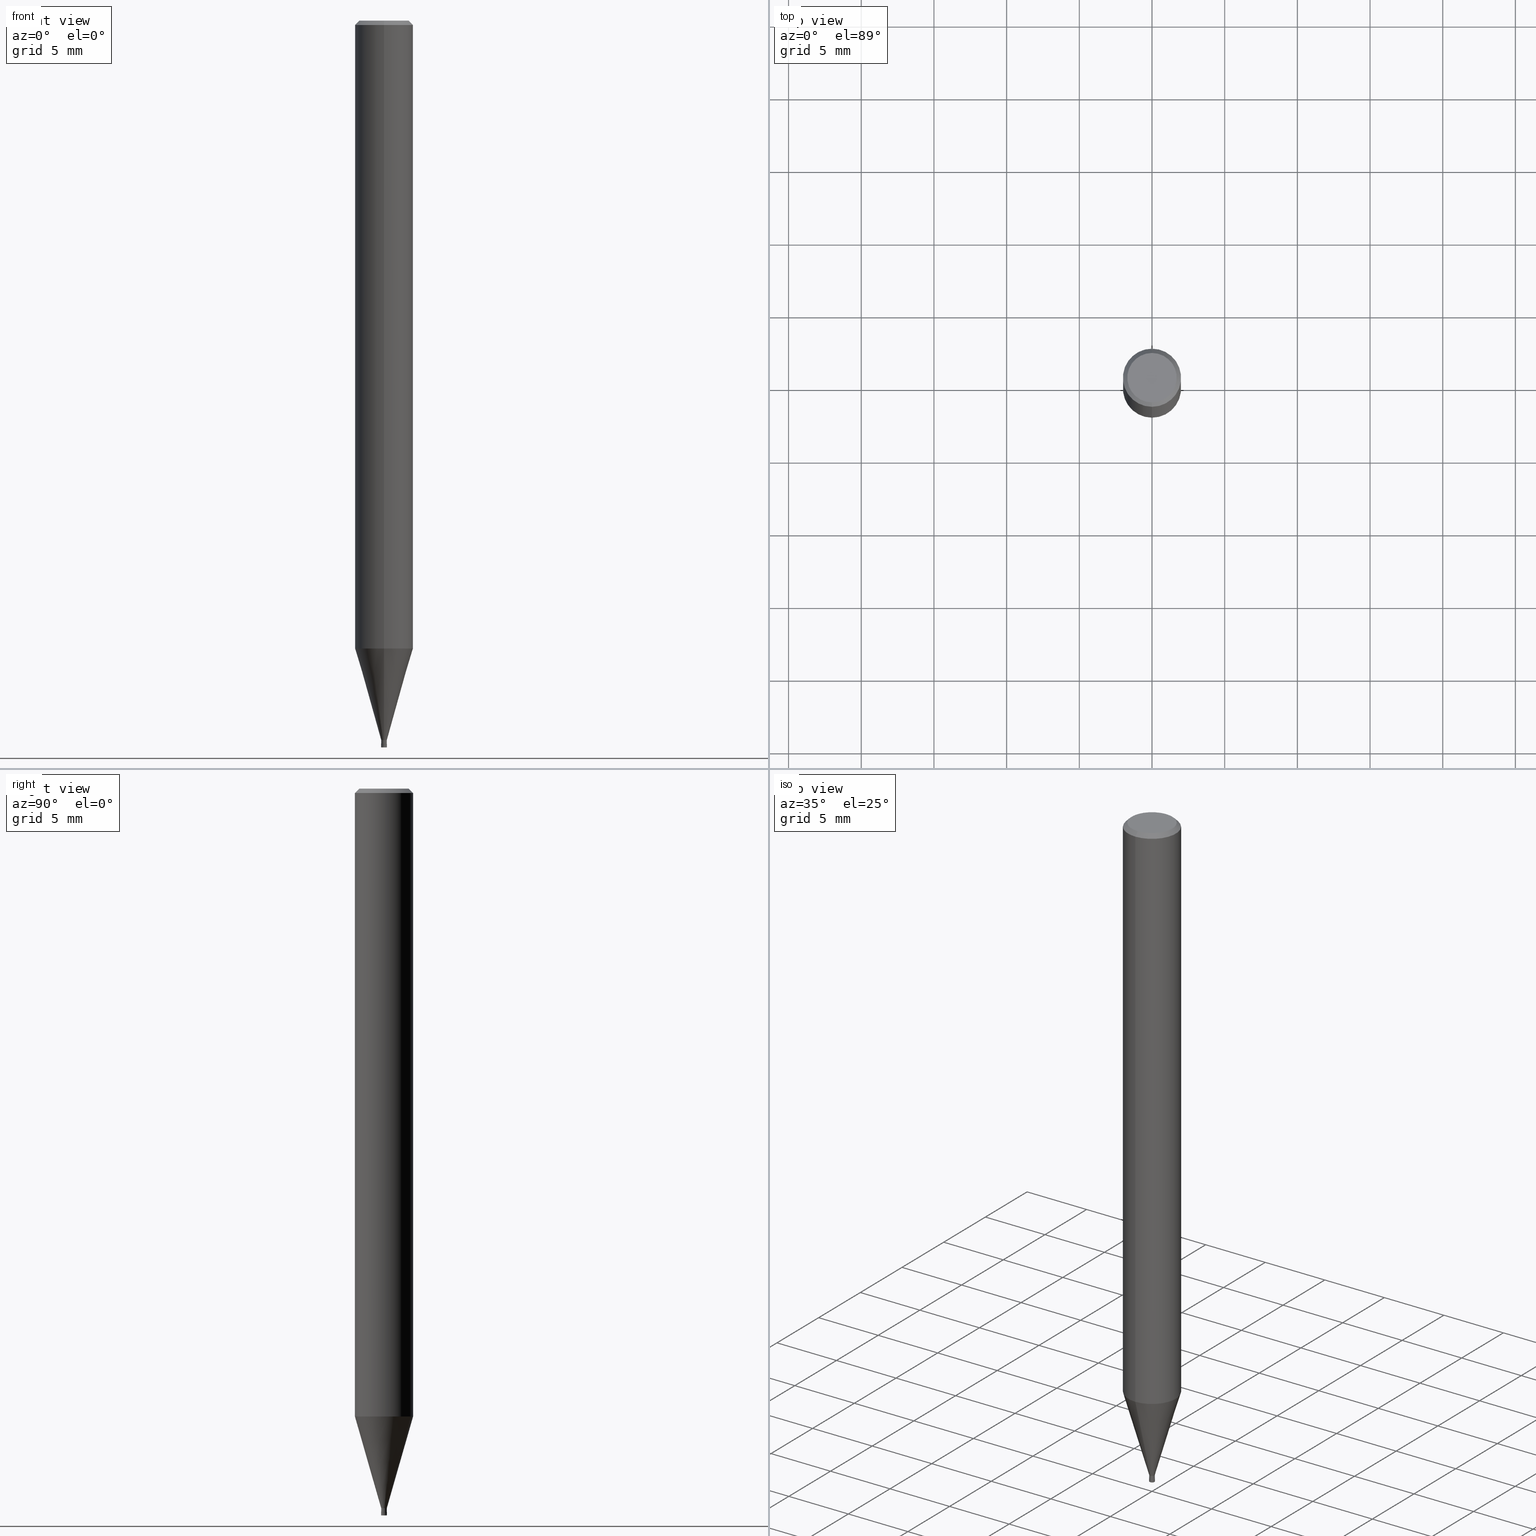
[diagram: canonical four-view strip — front | top / right | iso, engineering-drawing reading convention]
A machine part, canonical four-view strip (front | top / right | iso — engineering-drawing reading convention). The complete STEP part file that produces these views, byte-faithful:
ISO-10303-21;
HEADER;
FILE_DESCRIPTION(('no description'),'unknown implementation level');
FILE_NAME('HLRS4004-002-005-Huellk.stp','  ',('CIMSOURCE GmbH'),('CADClick - KiM GmbH - www.kimweb.de'),'unknown preprocess','ACIS','unknown authorization');
FILE_SCHEMA(('automotive_design'));
ENDSEC;
DATA;
#1=MECHANICAL_DESIGN_GEOMETRIC_PRESENTATION_REPRESENTATION(' ',(#14,#15,#16,#17,#18,#19,#20,#21,#22,#23,#24,#25,#26,#27,#28,#29,#30,#31,#32,#33,#34,#35,#36,#37,#38,#39,#40,#41,#42,#43,#44,#45,#46,#47,#48,#49,#50,#51,#52,#53,#54,#55,#56,#57,#58,#59,#60,#61,#62,#63,#64,#65,#66,#67,#68,#69,#70,#71,#72,#73,#74,#75,#76,#77,#78,#79,#80,#81,#82,#83,#84,#85,#86,#87,#88,#89,#90,#91,#92,#93,#94,#95,#96,#97,#98,#99,#100,#101,#102,#103,#104,#105,#106,#107,#108,#109,#110,#111,#112,#113,#114,#115,#116,#117,#118,#119,#120,#121),#10);
#2=PRODUCT_DEFINITION_CONTEXT('',#122,'design');
#3=APPLICATION_PROTOCOL_DEFINITION('INTERNATIONAL STANDARD','automotive_design',1994,#122);
#4=PRODUCT_CATEGORY_RELATIONSHIP('NONE','NONE',#123,#124);
#5=SHAPE_DEFINITION_REPRESENTATION(#125,#126);
#6=PRODUCT_DEFINITION_CONTEXT('',#127,'design');
#7=APPLICATION_PROTOCOL_DEFINITION('INTERNATIONAL STANDARD','automotive_design',1994,#127);
#8=PRODUCT_CATEGORY_RELATIONSHIP('NONE','NONE',#128,#129);
#9=SHAPE_DEFINITION_REPRESENTATION(#130,#131);
#10= (GEOMETRIC_REPRESENTATION_CONTEXT(3)GLOBAL_UNCERTAINTY_ASSIGNED_CONTEXT((#134))GLOBAL_UNIT_ASSIGNED_CONTEXT((#136,#137,#138))REPRESENTATION_CONTEXT('NONE','WORKSPACE'));
#14=STYLED_ITEM('',(#140),#141);
#15=STYLED_ITEM('',(#142),#143);
#16=STYLED_ITEM('',(#144),#145);
#17=STYLED_ITEM('',(#146),#147);
#18=STYLED_ITEM('',(#148),#149);
#19=STYLED_ITEM('',(#150),#151);
#20=STYLED_ITEM('',(#152),#153);
#21=STYLED_ITEM('',(#154),#155);
#22=STYLED_ITEM('',(#156),#157);
#23=STYLED_ITEM('',(#158),#159);
#24=STYLED_ITEM('',(#160),#161);
#25=STYLED_ITEM('',(#162),#163);
#26=STYLED_ITEM('',(#164),#165);
#27=STYLED_ITEM('',(#166),#167);
#28=STYLED_ITEM('',(#168),#169);
#29=STYLED_ITEM('',(#170),#171);
#30=STYLED_ITEM('',(#172),#173);
#31=STYLED_ITEM('',(#174),#175);
#32=STYLED_ITEM('',(#176),#177);
#33=STYLED_ITEM('',(#178),#179);
#34=STYLED_ITEM('',(#180),#181);
#35=STYLED_ITEM('',(#182),#183);
#36=STYLED_ITEM('',(#184),#185);
#37=STYLED_ITEM('',(#186),#187);
#38=STYLED_ITEM('',(#188),#189);
#39=STYLED_ITEM('',(#190),#191);
#40=STYLED_ITEM('',(#192),#193);
#41=STYLED_ITEM('',(#194),#195);
#42=STYLED_ITEM('',(#196),#197);
#43=STYLED_ITEM('',(#198),#199);
#44=STYLED_ITEM('',(#200),#201);
#45=STYLED_ITEM('',(#202),#203);
#46=STYLED_ITEM('',(#204),#205);
#47=STYLED_ITEM('',(#206),#207);
#48=STYLED_ITEM('',(#208),#209);
#49=STYLED_ITEM('',(#210),#211);
#50=STYLED_ITEM('',(#212),#213);
#51=STYLED_ITEM('',(#214),#215);
#52=STYLED_ITEM('',(#216),#217);
#53=STYLED_ITEM('',(#218),#219);
#54=STYLED_ITEM('',(#220),#221);
#55=STYLED_ITEM('',(#222),#223);
#56=STYLED_ITEM('',(#224),#225);
#57=STYLED_ITEM('',(#226),#227);
#58=STYLED_ITEM('',(#228),#229);
#59=STYLED_ITEM('',(#230),#231);
#60=STYLED_ITEM('',(#232),#233);
#61=STYLED_ITEM('',(#234),#235);
#62=STYLED_ITEM('',(#236),#237);
#63=STYLED_ITEM('',(#238),#239);
#64=STYLED_ITEM('',(#240),#241);
#65=STYLED_ITEM('',(#242),#243);
#66=STYLED_ITEM('',(#244),#245);
#67=STYLED_ITEM('',(#246),#247);
#68=STYLED_ITEM('',(#248),#249);
#69=STYLED_ITEM('',(#250),#251);
#70=STYLED_ITEM('',(#252),#253);
#71=STYLED_ITEM('',(#254),#255);
#72=STYLED_ITEM('',(#256),#257);
#73=STYLED_ITEM('',(#258),#259);
#74=STYLED_ITEM('',(#260),#261);
#75=STYLED_ITEM('',(#262),#263);
#76=STYLED_ITEM('',(#264),#265);
#77=STYLED_ITEM('',(#266),#267);
#78=STYLED_ITEM('',(#268),#269);
#79=STYLED_ITEM('',(#270),#271);
#80=STYLED_ITEM('',(#272),#273);
#81=STYLED_ITEM('',(#274),#275);
#82=STYLED_ITEM('',(#276),#277);
#83=STYLED_ITEM('',(#278),#279);
#84=STYLED_ITEM('',(#280),#281);
#85=STYLED_ITEM('',(#282),#283);
#86=STYLED_ITEM('',(#284),#285);
#87=STYLED_ITEM('',(#286),#287);
#88=STYLED_ITEM('',(#288),#289);
#89=STYLED_ITEM('',(#290),#291);
#90=STYLED_ITEM('',(#292),#293);
#91=STYLED_ITEM('',(#294),#295);
#92=STYLED_ITEM('',(#296),#297);
#93=STYLED_ITEM('',(#298),#299);
#94=STYLED_ITEM('',(#300),#301);
#95=STYLED_ITEM('',(#302),#303);
#96=STYLED_ITEM('',(#304),#305);
#97=STYLED_ITEM('',(#306),#307);
#98=STYLED_ITEM('',(#308),#309);
#99=STYLED_ITEM('',(#310),#311);
#100=STYLED_ITEM('',(#312),#313);
#101=STYLED_ITEM('',(#314),#315);
#102=STYLED_ITEM('',(#316),#317);
#103=STYLED_ITEM('',(#318),#319);
#104=STYLED_ITEM('',(#320),#321);
#105=STYLED_ITEM('',(#322),#323);
#106=STYLED_ITEM('',(#324),#325);
#107=STYLED_ITEM('',(#326),#327);
#108=STYLED_ITEM('',(#328),#329);
#109=STYLED_ITEM('',(#330),#331);
#110=STYLED_ITEM('',(#332),#333);
#111=STYLED_ITEM('',(#334),#335);
#112=STYLED_ITEM('',(#336),#337);
#113=STYLED_ITEM('',(#338),#339);
#114=STYLED_ITEM('',(#340),#341);
#115=STYLED_ITEM('',(#342),#343);
#116=STYLED_ITEM('',(#344),#345);
#117=STYLED_ITEM('',(#346),#347);
#118=STYLED_ITEM('',(#348),#349);
#119=STYLED_ITEM('',(#350),#351);
#120=STYLED_ITEM('',(#352),#353);
#121=STYLED_ITEM('',(#354),#355);
#122=APPLICATION_CONTEXT(' ');
#123=PRODUCT_CATEGORY('part','NONE');
#124=PRODUCT_RELATED_PRODUCT_CATEGORY('detail',' ',(#356));
#125=PRODUCT_DEFINITION_SHAPE('NONE','NONE',#357);
#126=ADVANCED_BREP_SHAPE_REPRESENTATION('1',(#259,#358),#10);
#127=APPLICATION_CONTEXT(' ');
#128=PRODUCT_CATEGORY('part','NONE');
#129=PRODUCT_RELATED_PRODUCT_CATEGORY('detail',' ',(#359));
#130=PRODUCT_DEFINITION_SHAPE('NONE','NONE',#360);
#131=ADVANCED_BREP_SHAPE_REPRESENTATION('2',(#319,#361),#10);
#134=UNCERTAINTY_MEASURE_WITH_UNIT(LENGTH_MEASURE(1.0E-006),#136,'','');
#136= (CONVERSION_BASED_UNIT('MILLIMETRE',#364)LENGTH_UNIT()NAMED_UNIT(#367));
#137= (NAMED_UNIT(#369)PLANE_ANGLE_UNIT()SI_UNIT($,.RADIAN.));
#138= (NAMED_UNIT(#369)SOLID_ANGLE_UNIT()SI_UNIT($,.STERADIAN.));
#140=PRESENTATION_STYLE_ASSIGNMENT((#375));
#141=VERTEX_POINT('',#376);
#142=PRESENTATION_STYLE_ASSIGNMENT((#377));
#143=ADVANCED_FACE('',(#378),#379,.T.);
#144=PRESENTATION_STYLE_ASSIGNMENT((#380));
#145=ADVANCED_FACE('',(#381),#382,.F.);
#146=PRESENTATION_STYLE_ASSIGNMENT((#383));
#147=VERTEX_POINT('',#384);
#148=PRESENTATION_STYLE_ASSIGNMENT((#385));
#149=VERTEX_POINT('',#386);
#150=PRESENTATION_STYLE_ASSIGNMENT((#387));
#151=EDGE_CURVE('',#215,#183,#388,.T.);
#152=PRESENTATION_STYLE_ASSIGNMENT((#389));
#153=VERTEX_POINT('',#390);
#154=PRESENTATION_STYLE_ASSIGNMENT((#391));
#155=EDGE_CURVE('',#313,#153,#392,.T.);
#156=PRESENTATION_STYLE_ASSIGNMENT((#393));
#157=ADVANCED_FACE('',(#394),#395,.T.);
#158=PRESENTATION_STYLE_ASSIGNMENT((#396));
#159=EDGE_CURVE('',#205,#251,#397,.T.);
#160=PRESENTATION_STYLE_ASSIGNMENT((#398));
#161=EDGE_CURVE('',#229,#309,#399,.T.);
#162=PRESENTATION_STYLE_ASSIGNMENT((#400));
#163=ADVANCED_FACE('',(#401),#402,.T.);
#164=PRESENTATION_STYLE_ASSIGNMENT((#403));
#165=VERTEX_POINT('',#404);
#166=PRESENTATION_STYLE_ASSIGNMENT((#405));
#167=VERTEX_POINT('',#406);
#168=PRESENTATION_STYLE_ASSIGNMENT((#407));
#169=VERTEX_POINT('',#408);
#170=PRESENTATION_STYLE_ASSIGNMENT((#409));
#171=VERTEX_POINT('',#410);
#172=PRESENTATION_STYLE_ASSIGNMENT((#411));
#173=ADVANCED_FACE('',(#412),#413,.T.);
#174=PRESENTATION_STYLE_ASSIGNMENT((#414));
#175=VERTEX_POINT('',#415);
#176=PRESENTATION_STYLE_ASSIGNMENT((#416));
#177=EDGE_CURVE('',#261,#333,#417,.T.);
#178=PRESENTATION_STYLE_ASSIGNMENT((#418));
#179=EDGE_CURVE('',#153,#261,#419,.T.);
#180=PRESENTATION_STYLE_ASSIGNMENT((#420));
#181=EDGE_CURVE('',#169,#141,#421,.T.);
#182=PRESENTATION_STYLE_ASSIGNMENT((#422));
#183=VERTEX_POINT('',#423);
#184=PRESENTATION_STYLE_ASSIGNMENT((#424));
#185=EDGE_CURVE('',#329,#233,#425,.T.);
#186=PRESENTATION_STYLE_ASSIGNMENT((#426));
#187=EDGE_CURVE('',#235,#309,#427,.T.);
#188=PRESENTATION_STYLE_ASSIGNMENT((#428));
#189=ADVANCED_FACE('',(#429),#430,.F.);
#190=PRESENTATION_STYLE_ASSIGNMENT((#431));
#191=ADVANCED_FACE('',(#432),#433,.T.);
#192=PRESENTATION_STYLE_ASSIGNMENT((#434));
#193=VERTEX_POINT('',#435);
#194=PRESENTATION_STYLE_ASSIGNMENT((#436));
#195=EDGE_CURVE('',#291,#329,#437,.T.);
#196=PRESENTATION_STYLE_ASSIGNMENT((#438));
#197=EDGE_CURVE('',#347,#235,#439,.T.);
#198=PRESENTATION_STYLE_ASSIGNMENT((#440));
#199=EDGE_CURVE('',#303,#287,#441,.T.);
#200=PRESENTATION_STYLE_ASSIGNMENT((#442));
#201=ADVANCED_FACE('',(#443),#444,.T.);
#202=PRESENTATION_STYLE_ASSIGNMENT((#445));
#203=ADVANCED_FACE('',(#446),#447,.T.);
#204=PRESENTATION_STYLE_ASSIGNMENT((#448));
#205=VERTEX_POINT('',#449);
#206=PRESENTATION_STYLE_ASSIGNMENT((#450));
#207=EDGE_CURVE('',#291,#183,#451,.T.);
#208=PRESENTATION_STYLE_ASSIGNMENT((#452));
#209=EDGE_CURVE('',#261,#251,#453,.T.);
#210=PRESENTATION_STYLE_ASSIGNMENT((#454));
#211=EDGE_CURVE('',#183,#291,#455,.T.);
#212=PRESENTATION_STYLE_ASSIGNMENT((#456));
#213=EDGE_CURVE('',#251,#205,#457,.T.);
#214=PRESENTATION_STYLE_ASSIGNMENT((#458));
#215=VERTEX_POINT('',#459);
#216=PRESENTATION_STYLE_ASSIGNMENT((#460));
#217=ADVANCED_FACE('',(#461),#462,.T.);
#218=PRESENTATION_STYLE_ASSIGNMENT((#463));
#219=EDGE_CURVE('',#271,#193,#464,.T.);
#220=PRESENTATION_STYLE_ASSIGNMENT((#465));
#221=EDGE_CURVE('',#337,#193,#466,.T.);
#222=PRESENTATION_STYLE_ASSIGNMENT((#467));
#223=ADVANCED_FACE('',(#468),#469,.T.);
#224=PRESENTATION_STYLE_ASSIGNMENT((#470));
#225=EDGE_CURVE('',#235,#347,#471,.T.);
#226=PRESENTATION_STYLE_ASSIGNMENT((#472));
#227=EDGE_CURVE('',#297,#337,#473,.T.);
#228=PRESENTATION_STYLE_ASSIGNMENT((#474));
#229=VERTEX_POINT('',#475);
#230=PRESENTATION_STYLE_ASSIGNMENT((#476));
#231=ADVANCED_FACE('',(#477),#478,.F.);
#232=PRESENTATION_STYLE_ASSIGNMENT((#479));
#233=VERTEX_POINT('',#480);
#234=PRESENTATION_STYLE_ASSIGNMENT((#481));
#235=VERTEX_POINT('',#482);
#236=PRESENTATION_STYLE_ASSIGNMENT((#483));
#237=ADVANCED_FACE('',(#484),#485,.T.);
#238=PRESENTATION_STYLE_ASSIGNMENT((#486));
#239=ADVANCED_FACE('',(#487),#488,.T.);
#240=PRESENTATION_STYLE_ASSIGNMENT((#489));
#241=EDGE_CURVE('',#165,#243,#490,.T.);
#242=PRESENTATION_STYLE_ASSIGNMENT((#491));
#243=VERTEX_POINT('',#492);
#244=PRESENTATION_STYLE_ASSIGNMENT((#493));
#245=EDGE_CURVE('',#141,#149,#494,.T.);
#246=PRESENTATION_STYLE_ASSIGNMENT((#495));
#247=ADVANCED_FACE('',(#496),#497,.T.);
#248=PRESENTATION_STYLE_ASSIGNMENT((#498));
#249=ADVANCED_FACE('',(#499),#500,.T.);
#250=PRESENTATION_STYLE_ASSIGNMENT((#501));
#251=VERTEX_POINT('',#502);
#252=PRESENTATION_STYLE_ASSIGNMENT((#503));
#253=EDGE_CURVE('',#243,#149,#504,.T.);
#254=PRESENTATION_STYLE_ASSIGNMENT((#505));
#255=EDGE_CURVE('',#171,#147,#506,.T.);
#256=PRESENTATION_STYLE_ASSIGNMENT((#507));
#257=EDGE_CURVE('',#287,#297,#508,.T.);
#258=PRESENTATION_STYLE_ASSIGNMENT((#509));
#259=MANIFOLD_SOLID_BREP('1',#510);
#260=PRESENTATION_STYLE_ASSIGNMENT((#511));
#261=VERTEX_POINT('',#512);
#262=PRESENTATION_STYLE_ASSIGNMENT((#513));
#263=EDGE_CURVE('',#333,#261,#514,.T.);
#264=PRESENTATION_STYLE_ASSIGNMENT((#515));
#265=EDGE_CURVE('',#153,#313,#516,.T.);
#266=PRESENTATION_STYLE_ASSIGNMENT((#517));
#267=EDGE_CURVE('',#297,#287,#518,.T.);
#268=PRESENTATION_STYLE_ASSIGNMENT((#519));
#269=EDGE_CURVE('',#141,#165,#520,.T.);
#270=PRESENTATION_STYLE_ASSIGNMENT((#521));
#271=VERTEX_POINT('',#522);
#272=PRESENTATION_STYLE_ASSIGNMENT((#523));
#273=EDGE_CURVE('',#167,#169,#524,.T.);
#274=PRESENTATION_STYLE_ASSIGNMENT((#525));
#275=ADVANCED_FACE('',(#526),#527,.T.);
#276=PRESENTATION_STYLE_ASSIGNMENT((#528));
#277=ADVANCED_FACE('',(#529,#530),#531,.T.);
#278=PRESENTATION_STYLE_ASSIGNMENT((#532));
#279=ADVANCED_FACE('',(#533,#534),#535,.T.);
#280=PRESENTATION_STYLE_ASSIGNMENT((#536));
#281=EDGE_CURVE('',#291,#175,#537,.T.);
#282=PRESENTATION_STYLE_ASSIGNMENT((#538));
#283=EDGE_CURVE('',#233,#329,#539,.T.);
#284=PRESENTATION_STYLE_ASSIGNMENT((#540));
#285=EDGE_CURVE('',#169,#167,#541,.T.);
#286=PRESENTATION_STYLE_ASSIGNMENT((#542));
#287=VERTEX_POINT('',#543);
#288=PRESENTATION_STYLE_ASSIGNMENT((#544));
#289=EDGE_CURVE('',#347,#147,#545,.T.);
#290=PRESENTATION_STYLE_ASSIGNMENT((#546));
#291=VERTEX_POINT('',#547);
#292=PRESENTATION_STYLE_ASSIGNMENT((#548));
#293=EDGE_CURVE('',#303,#337,#549,.T.);
#294=PRESENTATION_STYLE_ASSIGNMENT((#550));
#295=EDGE_CURVE('',#171,#235,#551,.T.);
#296=PRESENTATION_STYLE_ASSIGNMENT((#552));
#297=VERTEX_POINT('',#553);
#298=PRESENTATION_STYLE_ASSIGNMENT((#554));
#299=EDGE_CURVE('',#229,#347,#555,.T.);
#300=PRESENTATION_STYLE_ASSIGNMENT((#556));
#301=EDGE_CURVE('',#333,#313,#557,.T.);
#302=PRESENTATION_STYLE_ASSIGNMENT((#558));
#303=VERTEX_POINT('',#559);
#304=PRESENTATION_STYLE_ASSIGNMENT((#560));
#305=ADVANCED_FACE('',(#561),#562,.T.);
#306=PRESENTATION_STYLE_ASSIGNMENT((#563));
#307=EDGE_CURVE('',#147,#171,#564,.T.);
#308=PRESENTATION_STYLE_ASSIGNMENT((#565));
#309=VERTEX_POINT('',#566);
#310=PRESENTATION_STYLE_ASSIGNMENT((#567));
#311=EDGE_CURVE('',#215,#175,#568,.T.);
#312=PRESENTATION_STYLE_ASSIGNMENT((#569));
#313=VERTEX_POINT('',#570);
#314=PRESENTATION_STYLE_ASSIGNMENT((#571));
#315=EDGE_CURVE('',#149,#141,#572,.T.);
#316=PRESENTATION_STYLE_ASSIGNMENT((#573));
#317=EDGE_CURVE('',#149,#167,#574,.T.);
#318=PRESENTATION_STYLE_ASSIGNMENT((#575));
#319=MANIFOLD_SOLID_BREP('2',#576);
#320=PRESENTATION_STYLE_ASSIGNMENT((#577));
#321=EDGE_CURVE('',#337,#303,#578,.T.);
#322=PRESENTATION_STYLE_ASSIGNMENT((#579));
#323=ADVANCED_FACE('',(#580),#581,.T.);
#324=PRESENTATION_STYLE_ASSIGNMENT((#582));
#325=EDGE_CURVE('',#205,#333,#583,.T.);
#326=PRESENTATION_STYLE_ASSIGNMENT((#584));
#327=ADVANCED_FACE('',(#585),#586,.T.);
#328=PRESENTATION_STYLE_ASSIGNMENT((#587));
#329=VERTEX_POINT('',#588);
#330=PRESENTATION_STYLE_ASSIGNMENT((#589));
#331=EDGE_CURVE('',#175,#215,#590,.T.);
#332=PRESENTATION_STYLE_ASSIGNMENT((#591));
#333=VERTEX_POINT('',#592);
#334=PRESENTATION_STYLE_ASSIGNMENT((#593));
#335=EDGE_CURVE('',#233,#183,#594,.T.);
#336=PRESENTATION_STYLE_ASSIGNMENT((#595));
#337=VERTEX_POINT('',#596);
#338=PRESENTATION_STYLE_ASSIGNMENT((#597));
#339=EDGE_CURVE('',#243,#165,#598,.T.);
#340=PRESENTATION_STYLE_ASSIGNMENT((#599));
#341=EDGE_CURVE('',#309,#229,#600,.T.);
#342=PRESENTATION_STYLE_ASSIGNMENT((#601));
#343=ADVANCED_FACE('',(#602),#603,.T.);
#344=PRESENTATION_STYLE_ASSIGNMENT((#604));
#345=EDGE_CURVE('',#193,#271,#605,.T.);
#346=PRESENTATION_STYLE_ASSIGNMENT((#606));
#347=VERTEX_POINT('',#607);
#348=PRESENTATION_STYLE_ASSIGNMENT((#608));
#349=EDGE_CURVE('',#271,#303,#609,.T.);
#350=PRESENTATION_STYLE_ASSIGNMENT((#610));
#351=ADVANCED_FACE('',(#611,#612),#613,.T.);
#352=PRESENTATION_STYLE_ASSIGNMENT((#614));
#353=ADVANCED_FACE('',(#615),#616,.F.);
#354=PRESENTATION_STYLE_ASSIGNMENT((#617));
#355=ADVANCED_FACE('',(#618,#619),#620,.T.);
#356=PRODUCT('1','1','PART-1-DESC',(#621));
#357=PRODUCT_DEFINITION('NONE','NONE',#622,#2);
#358=AXIS2_PLACEMENT_3D('',#623,#624,#625);
#359=PRODUCT('2','2','PART-2-DESC',(#626));
#360=PRODUCT_DEFINITION('NONE','NONE',#627,#6);
#361=AXIS2_PLACEMENT_3D('',#628,#629,#630);
#364=LENGTH_MEASURE_WITH_UNIT(LENGTH_MEASURE(1.0),#631);
#367=DIMENSIONAL_EXPONENTS(1.0,0.0,0.0,0.0,0.0,0.0,0.0);
#369=DIMENSIONAL_EXPONENTS(0.0,0.0,0.0,0.0,0.0,0.0,0.0);
#375=POINT_STYLE(' ',#632,POSITIVE_LENGTH_MEASURE(1.0E-006),#633);
#376=CARTESIAN_POINT('',(0.0,2.0,-0.289999999999999));
#377=SURFACE_STYLE_USAGE(.BOTH.,#634);
#378=FACE_OUTER_BOUND('',#635,.T.);
#379=CONICAL_SURFACE('',#636,0.142475,1.47579965541249);
#380=SURFACE_STYLE_USAGE(.BOTH.,#637);
#381=FACE_OUTER_BOUND('',#638,.T.);
#382=CYLINDRICAL_SURFACE('',#639,0.09);
#383=POINT_STYLE(' ',#640,POSITIVE_LENGTH_MEASURE(1.0E-006),#641);
#384=CARTESIAN_POINT('',(0.0,0.09,-49.99));
#385=POINT_STYLE(' ',#642,POSITIVE_LENGTH_MEASURE(1.0E-006),#643);
#386=CARTESIAN_POINT('',(2.44921270764475E-016,-2.0,-0.289999999999999));
#387=CURVE_STYLE('',#644,POSITIVE_LENGTH_MEASURE(1.0E-006),#645);
#388=CIRCLE('',#646,0.0199999999999999);
#389=POINT_STYLE(' ',#647,POSITIVE_LENGTH_MEASURE(1.0E-006),#648);
#390=CARTESIAN_POINT('',(1.10214571844014E-017,-0.09,-49.93));
#391=CURVE_STYLE('',#649,POSITIVE_LENGTH_MEASURE(1.0E-006),#650);
#392=CIRCLE('',#651,0.09);
#393=SURFACE_STYLE_USAGE(.BOTH.,#652);
#394=FACE_OUTER_BOUND('',#653,.T.);
#395=CONICAL_SURFACE('',#654,1.85,0.785398163397453);
#396=CURVE_STYLE('',#655,POSITIVE_LENGTH_MEASURE(1.0E-006),#656);
#397=CIRCLE('',#657,0.19495);
#398=CURVE_STYLE('',#658,POSITIVE_LENGTH_MEASURE(1.0E-006),#659);
#399=CIRCLE('',#660,0.1949);
#400=SURFACE_STYLE_USAGE(.BOTH.,#661);
#401=FACE_OUTER_BOUND('',#662,.T.);
#402=CYLINDRICAL_SURFACE('',#663,2.0);
#403=POINT_STYLE(' ',#664,POSITIVE_LENGTH_MEASURE(1.0E-006),#665);
#404=CARTESIAN_POINT('',(0.0,2.0,-43.186));
#405=POINT_STYLE(' ',#666,POSITIVE_LENGTH_MEASURE(1.0E-006),#667);
#406=CARTESIAN_POINT('',(2.08183080149804E-016,-1.7,0.00999999999999801));
#407=POINT_STYLE(' ',#668,POSITIVE_LENGTH_MEASURE(1.0E-006),#669);
#408=CARTESIAN_POINT('',(0.0,1.7,0.00999999999999801));
#409=POINT_STYLE(' ',#670,POSITIVE_LENGTH_MEASURE(1.0E-006),#671);
#410=CARTESIAN_POINT('',(1.10214571844014E-017,-0.09,-49.99));
#411=SURFACE_STYLE_USAGE(.BOTH.,#672);
#412=FACE_OUTER_BOUND('',#673,.T.);
#413=TOROIDAL_SURFACE('',#674,0.18,0.0199999999999999);
#414=POINT_STYLE(' ',#675,POSITIVE_LENGTH_MEASURE(1.0E-006),#676);
#415=CARTESIAN_POINT('',(2.20429143688028E-017,-0.18,-49.99));
#416=CURVE_STYLE('',#677,POSITIVE_LENGTH_MEASURE(1.0E-006),#678);
#417=CIRCLE('',#679,0.09);
#418=CURVE_STYLE('',#680,POSITIVE_LENGTH_MEASURE(1.0E-006),#681);
#419=LINE('',#682,#683);
#420=CURVE_STYLE('',#684,POSITIVE_LENGTH_MEASURE(1.0E-006),#685);
#421=LINE('',#686,#687);
#422=POINT_STYLE(' ',#688,POSITIVE_LENGTH_MEASURE(1.0E-006),#689);
#423=CARTESIAN_POINT('',(0.0,0.2,-49.97));
#424=CURVE_STYLE('',#690,POSITIVE_LENGTH_MEASURE(1.0E-006),#691);
#425=CIRCLE('',#692,0.1999);
#426=CURVE_STYLE('',#693,POSITIVE_LENGTH_MEASURE(1.0E-006),#694);
#427=LINE('',#695,#696);
#428=SURFACE_STYLE_USAGE(.BOTH.,#697);
#429=FACE_OUTER_BOUND('',#698,.T.);
#430=CYLINDRICAL_SURFACE('',#699,0.09);
#431=SURFACE_STYLE_USAGE(.BOTH.,#700);
#432=FACE_OUTER_BOUND('',#701,.T.);
#433=CONICAL_SURFACE('',#702,1.0962,0.279231732547063);
#434=POINT_STYLE(' ',#703,POSITIVE_LENGTH_MEASURE(1.0E-006),#704);
#435=CARTESIAN_POINT('',(2.44915147732706E-016,-1.99995,-43.186));
#436=CURVE_STYLE('',#705,POSITIVE_LENGTH_MEASURE(1.0E-006),#706);
#437=LINE('',#707,#708);
#438=CURVE_STYLE('',#709,POSITIVE_LENGTH_MEASURE(1.0E-006),#710);
#439=CIRCLE('',#711,0.09);
#440=CURVE_STYLE('',#712,POSITIVE_LENGTH_MEASURE(1.0E-006),#713);
#441=LINE('',#714,#715);
#442=SURFACE_STYLE_USAGE(.BOTH.,#716);
#443=FACE_OUTER_BOUND('',#717,.T.);
#444=CONICAL_SURFACE('',#718,1.85,0.785398163397453);
#445=SURFACE_STYLE_USAGE(.BOTH.,#719);
#446=FACE_OUTER_BOUND('',#720,.T.);
#447=CONICAL_SURFACE('',#721,1.0962,0.279231732547063);
#448=POINT_STYLE(' ',#722,POSITIVE_LENGTH_MEASURE(1.0E-006),#723);
#449=CARTESIAN_POINT('',(0.0,0.19495,-49.75));
#450=CURVE_STYLE('',#724,POSITIVE_LENGTH_MEASURE(1.0E-006),#725);
#451=CIRCLE('',#726,0.2);
#452=CURVE_STYLE('',#727,POSITIVE_LENGTH_MEASURE(1.0E-006),#728);
#453=LINE('',#729,#730);
#454=CURVE_STYLE('',#731,POSITIVE_LENGTH_MEASURE(1.0E-006),#732);
#455=CIRCLE('',#733,0.2);
#456=CURVE_STYLE('',#734,POSITIVE_LENGTH_MEASURE(1.0E-006),#735);
#457=CIRCLE('',#736,0.19495);
#458=POINT_STYLE(' ',#737,POSITIVE_LENGTH_MEASURE(1.0E-006),#738);
#459=CARTESIAN_POINT('',(0.0,0.18,-49.99));
#460=SURFACE_STYLE_USAGE(.BOTH.,#739);
#461=FACE_OUTER_BOUND('',#740,.T.);
#462=CYLINDRICAL_SURFACE('',#741,0.09);
#463=CURVE_STYLE('',#742,POSITIVE_LENGTH_MEASURE(1.0E-006),#743);
#464=CIRCLE('',#744,1.99995);
#465=CURVE_STYLE('',#745,POSITIVE_LENGTH_MEASURE(1.0E-006),#746);
#466=LINE('',#747,#748);
#467=SURFACE_STYLE_USAGE(.BOTH.,#749);
#468=FACE_OUTER_BOUND('',#750,.T.);
#469=CONICAL_SURFACE('',#751,0.19995,0.000454545423240751);
#470=CURVE_STYLE('',#752,POSITIVE_LENGTH_MEASURE(1.0E-006),#753);
#471=CIRCLE('',#754,0.09);
#472=CURVE_STYLE('',#755,POSITIVE_LENGTH_MEASURE(1.0E-006),#756);
#473=LINE('',#757,#758);
#474=POINT_STYLE(' ',#759,POSITIVE_LENGTH_MEASURE(1.0E-006),#760);
#475=CARTESIAN_POINT('',(0.0,0.1949,-49.75));
#476=SURFACE_STYLE_USAGE(.BOTH.,#761);
#477=FACE_OUTER_BOUND('',#762,.T.);
#478=CONICAL_SURFACE('',#763,0.14245,1.47575464789401);
#479=POINT_STYLE(' ',#764,POSITIVE_LENGTH_MEASURE(1.0E-006),#765);
#480=CARTESIAN_POINT('',(0.0,0.1999,-49.75));
#481=POINT_STYLE(' ',#766,POSITIVE_LENGTH_MEASURE(1.0E-006),#767);
#482=CARTESIAN_POINT('',(1.10214571844014E-017,-0.09,-49.76));
#483=SURFACE_STYLE_USAGE(.BOTH.,#768);
#484=FACE_OUTER_BOUND('',#769,.T.);
#485=CYLINDRICAL_SURFACE('',#770,0.19245);
#486=SURFACE_STYLE_USAGE(.BOTH.,#771);
#487=FACE_OUTER_BOUND('',#772,.T.);
#488=PLANE('',#773);
#489=CURVE_STYLE('',#774,POSITIVE_LENGTH_MEASURE(1.0E-006),#775);
#490=CIRCLE('',#776,2.0);
#491=POINT_STYLE(' ',#777,POSITIVE_LENGTH_MEASURE(1.0E-006),#778);
#492=CARTESIAN_POINT('',(2.44921270764475E-016,-2.0,-43.186));
#493=CURVE_STYLE('',#779,POSITIVE_LENGTH_MEASURE(1.0E-006),#780);
#494=CIRCLE('',#781,2.0);
#495=SURFACE_STYLE_USAGE(.BOTH.,#782);
#496=FACE_OUTER_BOUND('',#783,.T.);
#497=PLANE('',#784);
#498=SURFACE_STYLE_USAGE(.BOTH.,#785);
#499=FACE_OUTER_BOUND('',#786,.T.);
#500=CYLINDRICAL_SURFACE('',#787,2.0);
#501=POINT_STYLE(' ',#788,POSITIVE_LENGTH_MEASURE(1.0E-006),#789);
#502=CARTESIAN_POINT('',(2.38737008677672E-017,-0.19495,-49.75));
#503=CURVE_STYLE('',#790,POSITIVE_LENGTH_MEASURE(1.0E-006),#791);
#504=LINE('',#792,#793);
#505=CURVE_STYLE('',#794,POSITIVE_LENGTH_MEASURE(1.0E-006),#795);
#506=CIRCLE('',#796,0.09);
#507=CURVE_STYLE('',#797,POSITIVE_LENGTH_MEASURE(1.0E-006),#798);
#508=CIRCLE('',#799,0.19245);
#509=SURFACE_STYLE_USAGE(.BOTH.,#800);
#510=CLOSED_SHELL('',(#343,#275,#327,#191,#249,#201,#355,#247,#157,#163,#203,#237,#351,#143,#217,#239));
#511=POINT_STYLE(' ',#801,POSITIVE_LENGTH_MEASURE(1.0E-006),#802);
#512=CARTESIAN_POINT('',(1.10214571844014E-017,-0.09,-49.76));
#513=CURVE_STYLE('',#803,POSITIVE_LENGTH_MEASURE(1.0E-006),#804);
#514=CIRCLE('',#805,0.09);
#515=CURVE_STYLE('',#806,POSITIVE_LENGTH_MEASURE(1.0E-006),#807);
#516=CIRCLE('',#808,0.09);
#517=CURVE_STYLE('',#809,POSITIVE_LENGTH_MEASURE(1.0E-006),#810);
#518=CIRCLE('',#811,0.19245);
#519=CURVE_STYLE('',#812,POSITIVE_LENGTH_MEASURE(1.0E-006),#813);
#520=LINE('',#814,#815);
#521=POINT_STYLE(' ',#816,POSITIVE_LENGTH_MEASURE(1.0E-006),#817);
#522=CARTESIAN_POINT('',(0.0,1.99995,-43.186));
#523=CURVE_STYLE('',#818,POSITIVE_LENGTH_MEASURE(1.0E-006),#819);
#524=CIRCLE('',#820,1.7);
#525=SURFACE_STYLE_USAGE(.BOTH.,#821);
#526=FACE_OUTER_BOUND('',#822,.T.);
#527=CONICAL_SURFACE('',#823,0.142475,1.47579965541249);
#528=SURFACE_STYLE_USAGE(.BOTH.,#824);
#529=FACE_BOUND('',#825,.T.);
#530=FACE_OUTER_BOUND('',#826,.T.);
#531=PLANE('',#827);
#532=SURFACE_STYLE_USAGE(.BOTH.,#828);
#533=FACE_OUTER_BOUND('',#829,.T.);
#534=FACE_BOUND('',#830,.T.);
#535=PLANE('',#831);
#536=CURVE_STYLE('',#832,POSITIVE_LENGTH_MEASURE(1.0E-006),#833);
#537=CIRCLE('',#834,0.0199999999999999);
#538=CURVE_STYLE('',#835,POSITIVE_LENGTH_MEASURE(1.0E-006),#836);
#539=CIRCLE('',#837,0.1999);
#540=CURVE_STYLE('',#838,POSITIVE_LENGTH_MEASURE(1.0E-006),#839);
#541=CIRCLE('',#840,1.7);
#542=POINT_STYLE(' ',#841,POSITIVE_LENGTH_MEASURE(1.0E-006),#842);
#543=CARTESIAN_POINT('',(0.0,0.19245,-49.75));
#544=CURVE_STYLE('',#843,POSITIVE_LENGTH_MEASURE(1.0E-006),#844);
#545=LINE('',#845,#846);
#546=POINT_STYLE(' ',#847,POSITIVE_LENGTH_MEASURE(1.0E-006),#848);
#547=CARTESIAN_POINT('',(2.44921270764475E-017,-0.2,-49.97));
#548=CURVE_STYLE('',#849,POSITIVE_LENGTH_MEASURE(1.0E-006),#850);
#549=CIRCLE('',#851,0.19245);
#550=CURVE_STYLE('',#852,POSITIVE_LENGTH_MEASURE(1.0E-006),#853);
#551=LINE('',#854,#855);
#552=POINT_STYLE(' ',#856,POSITIVE_LENGTH_MEASURE(1.0E-006),#857);
#553=CARTESIAN_POINT('',(2.35675492793117E-017,-0.19245,-49.75));
#554=CURVE_STYLE('',#858,POSITIVE_LENGTH_MEASURE(1.0E-006),#859);
#555=LINE('',#860,#861);
#556=CURVE_STYLE('',#862,POSITIVE_LENGTH_MEASURE(1.0E-006),#863);
#557=LINE('',#864,#865);
#558=POINT_STYLE(' ',#866,POSITIVE_LENGTH_MEASURE(1.0E-006),#867);
#559=CARTESIAN_POINT('',(0.0,0.19245,-49.49));
#560=SURFACE_STYLE_USAGE(.BOTH.,#868);
#561=FACE_OUTER_BOUND('',#869,.T.);
#562=TOROIDAL_SURFACE('',#870,0.18,0.0199999999999999);
#563=CURVE_STYLE('',#871,POSITIVE_LENGTH_MEASURE(1.0E-006),#872);
#564=CIRCLE('',#873,0.09);
#565=POINT_STYLE(' ',#874,POSITIVE_LENGTH_MEASURE(1.0E-006),#875);
#566=CARTESIAN_POINT('',(2.38675778359981E-017,-0.1949,-49.75));
#567=CURVE_STYLE('',#876,POSITIVE_LENGTH_MEASURE(1.0E-006),#877);
#568=CIRCLE('',#878,0.18);
#569=POINT_STYLE(' ',#879,POSITIVE_LENGTH_MEASURE(1.0E-006),#880);
#570=CARTESIAN_POINT('',(0.0,0.09,-49.93));
#571=CURVE_STYLE('',#881,POSITIVE_LENGTH_MEASURE(1.0E-006),#882);
#572=CIRCLE('',#883,2.0);
#573=CURVE_STYLE('',#884,POSITIVE_LENGTH_MEASURE(1.0E-006),#885);
#574=LINE('',#886,#887);
#575=SURFACE_STYLE_USAGE(.BOTH.,#888);
#576=CLOSED_SHELL('',(#145,#173,#323,#231,#353,#279,#223,#305,#277,#189));
#577=CURVE_STYLE('',#889,POSITIVE_LENGTH_MEASURE(1.0E-006),#890);
#578=CIRCLE('',#891,0.19245);
#579=SURFACE_STYLE_USAGE(.BOTH.,#892);
#580=FACE_OUTER_BOUND('',#893,.T.);
#581=CONICAL_SURFACE('',#894,0.19995,0.000454545423240751);
#582=CURVE_STYLE('',#895,POSITIVE_LENGTH_MEASURE(1.0E-006),#896);
#583=LINE('',#897,#898);
#584=SURFACE_STYLE_USAGE(.BOTH.,#899);
#585=FACE_OUTER_BOUND('',#900,.T.);
#586=CYLINDRICAL_SURFACE('',#901,0.19245);
#587=POINT_STYLE(' ',#902,POSITIVE_LENGTH_MEASURE(1.0E-006),#903);
#588=CARTESIAN_POINT('',(2.44798810129093E-017,-0.1999,-49.75));
#589=CURVE_STYLE('',#904,POSITIVE_LENGTH_MEASURE(1.0E-006),#905);
#590=CIRCLE('',#906,0.18);
#591=POINT_STYLE(' ',#907,POSITIVE_LENGTH_MEASURE(1.0E-006),#908);
#592=CARTESIAN_POINT('',(0.0,0.09,-49.76));
#593=CURVE_STYLE('',#909,POSITIVE_LENGTH_MEASURE(1.0E-006),#910);
#594=LINE('',#911,#912);
#595=POINT_STYLE(' ',#913,POSITIVE_LENGTH_MEASURE(1.0E-006),#914);
#596=CARTESIAN_POINT('',(2.35675492793117E-017,-0.19245,-49.49));
#597=CURVE_STYLE('',#915,POSITIVE_LENGTH_MEASURE(1.0E-006),#916);
#598=CIRCLE('',#917,2.0);
#599=CURVE_STYLE('',#918,POSITIVE_LENGTH_MEASURE(1.0E-006),#919);
#600=CIRCLE('',#920,0.1949);
#601=SURFACE_STYLE_USAGE(.BOTH.,#921);
#602=FACE_OUTER_BOUND('',#922,.T.);
#603=CYLINDRICAL_SURFACE('',#923,0.09);
#604=CURVE_STYLE('',#924,POSITIVE_LENGTH_MEASURE(1.0E-006),#925);
#605=CIRCLE('',#926,1.99995);
#606=POINT_STYLE(' ',#927,POSITIVE_LENGTH_MEASURE(1.0E-006),#928);
#607=CARTESIAN_POINT('',(0.0,0.09,-49.76));
#608=CURVE_STYLE('',#929,POSITIVE_LENGTH_MEASURE(1.0E-006),#930);
#609=LINE('',#931,#932);
#610=SURFACE_STYLE_USAGE(.BOTH.,#933);
#611=FACE_OUTER_BOUND('',#934,.T.);
#612=FACE_BOUND('',#935,.T.);
#613=PLANE('',#936);
#614=SURFACE_STYLE_USAGE(.BOTH.,#937);
#615=FACE_OUTER_BOUND('',#938,.T.);
#616=CONICAL_SURFACE('',#939,0.14245,1.47575464789401);
#617=SURFACE_STYLE_USAGE(.BOTH.,#940);
#618=FACE_OUTER_BOUND('',#941,.T.);
#619=FACE_BOUND('',#942,.T.);
#620=PLANE('',#943);
#621=PRODUCT_CONTEXT('',#122,'mechanical');
#622=PRODUCT_DEFINITION_FORMATION_WITH_SPECIFIED_SOURCE(' ','NONE',#356,.NOT_KNOWN.);
#623=CARTESIAN_POINT('',(0.0,0.0,0.0));
#624=DIRECTION('',(0.0,0.0,1.0));
#625=DIRECTION('',(1.0,0.0,0.0));
#626=PRODUCT_CONTEXT('',#127,'mechanical');
#627=PRODUCT_DEFINITION_FORMATION_WITH_SPECIFIED_SOURCE(' ','NONE',#359,.NOT_KNOWN.);
#628=CARTESIAN_POINT('',(0.0,0.0,0.0));
#629=DIRECTION('',(0.0,0.0,1.0));
#630=DIRECTION('',(1.0,0.0,0.0));
#631= (NAMED_UNIT(#367)LENGTH_UNIT()SI_UNIT(.MILLI.,.METRE.));
#632=PRE_DEFINED_MARKER('');
#633=COLOUR_RGB('',0.498039215803146,0.498039215803146,0.498039215803146);
#634=SURFACE_SIDE_STYLE('',(#945));
#635=EDGE_LOOP('',(#946,#947,#948,#949));
#636=AXIS2_PLACEMENT_3D('',#950,#951,#952);
#637=SURFACE_SIDE_STYLE('',(#953));
#638=EDGE_LOOP('',(#954,#955,#956,#957));
#639=AXIS2_PLACEMENT_3D('',#958,#959,#960);
#640=PRE_DEFINED_MARKER('');
#641=COLOUR_RGB('',0.800000011920929,0.800000011920929,0.800000011920929);
#642=PRE_DEFINED_MARKER('');
#643=COLOUR_RGB('',0.498039215803146,0.498039215803146,0.498039215803146);
#644=DRAUGHTING_PRE_DEFINED_CURVE_FONT('continuous');
#645=COLOUR_RGB('',0.800000011920929,0.800000011920929,0.800000011920929);
#646=AXIS2_PLACEMENT_3D('',#961,#962,#963);
#647=PRE_DEFINED_MARKER('');
#648=COLOUR_RGB('',0.498039215803146,0.498039215803146,0.498039215803146);
#649=DRAUGHTING_PRE_DEFINED_CURVE_FONT('continuous');
#650=COLOUR_RGB('',0.498039215803146,0.498039215803146,0.498039215803146);
#651=AXIS2_PLACEMENT_3D('',#964,#965,#966);
#652=SURFACE_SIDE_STYLE('',(#967));
#653=EDGE_LOOP('',(#968,#969,#970,#971));
#654=AXIS2_PLACEMENT_3D('',#972,#973,#974);
#655=DRAUGHTING_PRE_DEFINED_CURVE_FONT('continuous');
#656=COLOUR_RGB('',0.498039215803146,0.498039215803146,0.498039215803146);
#657=AXIS2_PLACEMENT_3D('',#975,#976,#977);
#658=DRAUGHTING_PRE_DEFINED_CURVE_FONT('continuous');
#659=COLOUR_RGB('',0.800000011920929,0.800000011920929,0.800000011920929);
#660=AXIS2_PLACEMENT_3D('',#978,#979,#980);
#661=SURFACE_SIDE_STYLE('',(#981));
#662=EDGE_LOOP('',(#982,#983,#984,#985));
#663=AXIS2_PLACEMENT_3D('',#986,#987,#988);
#664=PRE_DEFINED_MARKER('');
#665=COLOUR_RGB('',0.498039215803146,0.498039215803146,0.498039215803146);
#666=PRE_DEFINED_MARKER('');
#667=COLOUR_RGB('',0.498039215803146,0.498039215803146,0.498039215803146);
#668=PRE_DEFINED_MARKER('');
#669=COLOUR_RGB('',0.498039215803146,0.498039215803146,0.498039215803146);
#670=PRE_DEFINED_MARKER('');
#671=COLOUR_RGB('',0.800000011920929,0.800000011920929,0.800000011920929);
#672=SURFACE_SIDE_STYLE('',(#989));
#673=EDGE_LOOP('',(#990,#991,#992,#993));
#674=AXIS2_PLACEMENT_3D('',#994,#995,#996);
#675=PRE_DEFINED_MARKER('');
#676=COLOUR_RGB('',0.800000011920929,0.800000011920929,0.800000011920929);
#677=DRAUGHTING_PRE_DEFINED_CURVE_FONT('continuous');
#678=COLOUR_RGB('',0.498039215803146,0.498039215803146,0.498039215803146);
#679=AXIS2_PLACEMENT_3D('',#997,#998,#999);
#680=DRAUGHTING_PRE_DEFINED_CURVE_FONT('continuous');
#681=COLOUR_RGB('',0.498039215803146,0.498039215803146,0.498039215803146);
#682=CARTESIAN_POINT('',(1.10214571844014E-017,-0.09,-49.845));
#683=VECTOR('',#1000,1.0);
#684=DRAUGHTING_PRE_DEFINED_CURVE_FONT('continuous');
#685=COLOUR_RGB('',0.498039215803146,0.498039215803146,0.498039215803146);
#686=CARTESIAN_POINT('',(-2.2655217545714E-016,1.85,-0.140000000000001));
#687=VECTOR('',#1001,1.0);
#688=PRE_DEFINED_MARKER('');
#689=COLOUR_RGB('',0.800000011920929,0.800000011920929,0.800000011920929);
#690=DRAUGHTING_PRE_DEFINED_CURVE_FONT('continuous');
#691=COLOUR_RGB('',0.800000011920929,0.800000011920929,0.800000011920929);
#692=AXIS2_PLACEMENT_3D('',#1002,#1003,#1004);
#693=DRAUGHTING_PRE_DEFINED_CURVE_FONT('continuous');
#694=COLOUR_RGB('',0.800000011920929,0.800000011920929,0.800000011920929);
#695=CARTESIAN_POINT('',(1.74445175101998E-017,-0.14245,-49.755));
#696=VECTOR('',#1005,1.0);
#697=SURFACE_SIDE_STYLE('',(#1006));
#698=EDGE_LOOP('',(#1007,#1008,#1009,#1010));
#699=AXIS2_PLACEMENT_3D('',#1011,#1012,#1013);
#700=SURFACE_SIDE_STYLE('',(#1014));
#701=EDGE_LOOP('',(#1015,#1016,#1017,#1018));
#702=AXIS2_PLACEMENT_3D('',#1019,#1020,#1021);
#703=PRE_DEFINED_MARKER('');
#704=COLOUR_RGB('',0.498039215803146,0.498039215803146,0.498039215803146);
#705=DRAUGHTING_PRE_DEFINED_CURVE_FONT('continuous');
#706=COLOUR_RGB('',0.800000011920929,0.800000011920929,0.800000011920929);
#707=CARTESIAN_POINT('',(2.44860040446784E-017,-0.19995,-49.86));
#708=VECTOR('',#1022,1.0);
#709=DRAUGHTING_PRE_DEFINED_CURVE_FONT('continuous');
#710=COLOUR_RGB('',0.800000011920929,0.800000011920929,0.800000011920929);
#711=AXIS2_PLACEMENT_3D('',#1023,#1024,#1025);
#712=DRAUGHTING_PRE_DEFINED_CURVE_FONT('continuous');
#713=COLOUR_RGB('',0.498039215803146,0.498039215803146,0.498039215803146);
#714=CARTESIAN_POINT('',(-2.35675492793117E-017,0.19245,-49.62));
#715=VECTOR('',#1026,1.0);
#716=SURFACE_SIDE_STYLE('',(#1027));
#717=EDGE_LOOP('',(#1028,#1029,#1030,#1031));
#718=AXIS2_PLACEMENT_3D('',#1032,#1033,#1034);
#719=SURFACE_SIDE_STYLE('',(#1035));
#720=EDGE_LOOP('',(#1036,#1037,#1038,#1039));
#721=AXIS2_PLACEMENT_3D('',#1040,#1041,#1042);
#722=PRE_DEFINED_MARKER('');
#723=COLOUR_RGB('',0.498039215803146,0.498039215803146,0.498039215803146);
#724=DRAUGHTING_PRE_DEFINED_CURVE_FONT('continuous');
#725=COLOUR_RGB('',0.800000011920929,0.800000011920929,0.800000011920929);
#726=AXIS2_PLACEMENT_3D('',#1043,#1044,#1045);
#727=DRAUGHTING_PRE_DEFINED_CURVE_FONT('continuous');
#728=COLOUR_RGB('',0.498039215803146,0.498039215803146,0.498039215803146);
#729=CARTESIAN_POINT('',(1.74475790260843E-017,-0.142475,-49.755));
#730=VECTOR('',#1046,1.0);
#731=DRAUGHTING_PRE_DEFINED_CURVE_FONT('continuous');
#732=COLOUR_RGB('',0.800000011920929,0.800000011920929,0.800000011920929);
#733=AXIS2_PLACEMENT_3D('',#1047,#1048,#1049);
#734=DRAUGHTING_PRE_DEFINED_CURVE_FONT('continuous');
#735=COLOUR_RGB('',0.498039215803146,0.498039215803146,0.498039215803146);
#736=AXIS2_PLACEMENT_3D('',#1050,#1051,#1052);
#737=PRE_DEFINED_MARKER('');
#738=COLOUR_RGB('',0.800000011920929,0.800000011920929,0.800000011920929);
#739=SURFACE_SIDE_STYLE('',(#1053));
#740=EDGE_LOOP('',(#1054,#1055,#1056,#1057));
#741=AXIS2_PLACEMENT_3D('',#1058,#1059,#1060);
#742=DRAUGHTING_PRE_DEFINED_CURVE_FONT('continuous');
#743=COLOUR_RGB('',0.498039215803146,0.498039215803146,0.498039215803146);
#744=AXIS2_PLACEMENT_3D('',#1061,#1062,#1063);
#745=DRAUGHTING_PRE_DEFINED_CURVE_FONT('continuous');
#746=COLOUR_RGB('',0.498039215803146,0.498039215803146,0.498039215803146);
#747=CARTESIAN_POINT('',(1.34241348506009E-016,-1.0962,-46.338));
#748=VECTOR('',#1064,1.0);
#749=SURFACE_SIDE_STYLE('',(#1065));
#750=EDGE_LOOP('',(#1066,#1067,#1068,#1069));
#751=AXIS2_PLACEMENT_3D('',#1070,#1071,#1072);
#752=DRAUGHTING_PRE_DEFINED_CURVE_FONT('continuous');
#753=COLOUR_RGB('',0.800000011920929,0.800000011920929,0.800000011920929);
#754=AXIS2_PLACEMENT_3D('',#1073,#1074,#1075);
#755=DRAUGHTING_PRE_DEFINED_CURVE_FONT('continuous');
#756=COLOUR_RGB('',0.498039215803146,0.498039215803146,0.498039215803146);
#757=CARTESIAN_POINT('',(2.35675492793117E-017,-0.19245,-49.62));
#758=VECTOR('',#1076,1.0);
#759=PRE_DEFINED_MARKER('');
#760=COLOUR_RGB('',0.800000011920929,0.800000011920929,0.800000011920929);
#761=SURFACE_SIDE_STYLE('',(#1077));
#762=EDGE_LOOP('',(#1078,#1079,#1080,#1081));
#763=AXIS2_PLACEMENT_3D('',#1082,#1083,#1084);
#764=PRE_DEFINED_MARKER('');
#765=COLOUR_RGB('',0.800000011920929,0.800000011920929,0.800000011920929);
#766=PRE_DEFINED_MARKER('');
#767=COLOUR_RGB('',0.800000011920929,0.800000011920929,0.800000011920929);
#768=SURFACE_SIDE_STYLE('',(#1085));
#769=EDGE_LOOP('',(#1086,#1087,#1088,#1089));
#770=AXIS2_PLACEMENT_3D('',#1090,#1091,#1092);
#771=SURFACE_SIDE_STYLE('',(#1093));
#772=EDGE_LOOP('',(#1094,#1095));
#773=AXIS2_PLACEMENT_3D('',#1096,#1097,#1098);
#774=DRAUGHTING_PRE_DEFINED_CURVE_FONT('continuous');
#775=COLOUR_RGB('',0.498039215803146,0.498039215803146,0.498039215803146);
#776=AXIS2_PLACEMENT_3D('',#1099,#1100,#1101);
#777=PRE_DEFINED_MARKER('');
#778=COLOUR_RGB('',0.498039215803146,0.498039215803146,0.498039215803146);
#779=DRAUGHTING_PRE_DEFINED_CURVE_FONT('continuous');
#780=COLOUR_RGB('',0.498039215803146,0.498039215803146,0.498039215803146);
#781=AXIS2_PLACEMENT_3D('',#1102,#1103,#1104);
#782=SURFACE_SIDE_STYLE('',(#1105));
#783=EDGE_LOOP('',(#1106,#1107));
#784=AXIS2_PLACEMENT_3D('',#1108,#1109,#1110);
#785=SURFACE_SIDE_STYLE('',(#1111));
#786=EDGE_LOOP('',(#1112,#1113,#1114,#1115));
#787=AXIS2_PLACEMENT_3D('',#1116,#1117,#1118);
#788=PRE_DEFINED_MARKER('');
#789=COLOUR_RGB('',0.498039215803146,0.498039215803146,0.498039215803146);
#790=DRAUGHTING_PRE_DEFINED_CURVE_FONT('continuous');
#791=COLOUR_RGB('',0.498039215803146,0.498039215803146,0.498039215803146);
#792=CARTESIAN_POINT('',(2.44921270764475E-016,-2.0,-21.738));
#793=VECTOR('',#1119,1.0);
#794=DRAUGHTING_PRE_DEFINED_CURVE_FONT('continuous');
#795=COLOUR_RGB('',0.800000011920929,0.800000011920929,0.800000011920929);
#796=AXIS2_PLACEMENT_3D('',#1120,#1121,#1122);
#797=DRAUGHTING_PRE_DEFINED_CURVE_FONT('continuous');
#798=COLOUR_RGB('',0.498039215803146,0.498039215803146,0.498039215803146);
#799=AXIS2_PLACEMENT_3D('',#1123,#1124,#1125);
#800=SURFACE_SIDE_STYLE('',(#1126));
#801=PRE_DEFINED_MARKER('');
#802=COLOUR_RGB('',0.498039215803146,0.498039215803146,0.498039215803146);
#803=DRAUGHTING_PRE_DEFINED_CURVE_FONT('continuous');
#804=COLOUR_RGB('',0.498039215803146,0.498039215803146,0.498039215803146);
#805=AXIS2_PLACEMENT_3D('',#1127,#1128,#1129);
#806=DRAUGHTING_PRE_DEFINED_CURVE_FONT('continuous');
#807=COLOUR_RGB('',0.498039215803146,0.498039215803146,0.498039215803146);
#808=AXIS2_PLACEMENT_3D('',#1130,#1131,#1132);
#809=DRAUGHTING_PRE_DEFINED_CURVE_FONT('continuous');
#810=COLOUR_RGB('',0.498039215803146,0.498039215803146,0.498039215803146);
#811=AXIS2_PLACEMENT_3D('',#1133,#1134,#1135);
#812=DRAUGHTING_PRE_DEFINED_CURVE_FONT('continuous');
#813=COLOUR_RGB('',0.498039215803146,0.498039215803146,0.498039215803146);
#814=CARTESIAN_POINT('',(-2.44921270764475E-016,2.0,-21.738));
#815=VECTOR('',#1136,1.0);
#816=PRE_DEFINED_MARKER('');
#817=COLOUR_RGB('',0.498039215803146,0.498039215803146,0.498039215803146);
#818=DRAUGHTING_PRE_DEFINED_CURVE_FONT('continuous');
#819=COLOUR_RGB('',0.498039215803146,0.498039215803146,0.498039215803146);
#820=AXIS2_PLACEMENT_3D('',#1137,#1138,#1139);
#821=SURFACE_SIDE_STYLE('',(#1140));
#822=EDGE_LOOP('',(#1141,#1142,#1143,#1144));
#823=AXIS2_PLACEMENT_3D('',#1145,#1146,#1147);
#824=SURFACE_SIDE_STYLE('',(#1148));
#825=EDGE_LOOP('',(#1149,#1150));
#826=EDGE_LOOP('',(#1151,#1152));
#827=AXIS2_PLACEMENT_3D('',#1153,#1154,#1155);
#828=SURFACE_SIDE_STYLE('',(#1156));
#829=EDGE_LOOP('',(#1157,#1158));
#830=EDGE_LOOP('',(#1159,#1160));
#831=AXIS2_PLACEMENT_3D('',#1161,#1162,#1163);
#832=DRAUGHTING_PRE_DEFINED_CURVE_FONT('continuous');
#833=COLOUR_RGB('',0.800000011920929,0.800000011920929,0.800000011920929);
#834=AXIS2_PLACEMENT_3D('',#1164,#1165,#1166);
#835=DRAUGHTING_PRE_DEFINED_CURVE_FONT('continuous');
#836=COLOUR_RGB('',0.800000011920929,0.800000011920929,0.800000011920929);
#837=AXIS2_PLACEMENT_3D('',#1167,#1168,#1169);
#838=DRAUGHTING_PRE_DEFINED_CURVE_FONT('continuous');
#839=COLOUR_RGB('',0.498039215803146,0.498039215803146,0.498039215803146);
#840=AXIS2_PLACEMENT_3D('',#1170,#1171,#1172);
#841=PRE_DEFINED_MARKER('');
#842=COLOUR_RGB('',0.498039215803146,0.498039215803146,0.498039215803146);
#843=DRAUGHTING_PRE_DEFINED_CURVE_FONT('continuous');
#844=COLOUR_RGB('',0.800000011920929,0.800000011920929,0.800000011920929);
#845=CARTESIAN_POINT('',(-1.10214571844014E-017,0.09,-49.875));
#846=VECTOR('',#1173,1.0);
#847=PRE_DEFINED_MARKER('');
#848=COLOUR_RGB('',0.800000011920929,0.800000011920929,0.800000011920929);
#849=DRAUGHTING_PRE_DEFINED_CURVE_FONT('continuous');
#850=COLOUR_RGB('',0.498039215803146,0.498039215803146,0.498039215803146);
#851=AXIS2_PLACEMENT_3D('',#1174,#1175,#1176);
#852=DRAUGHTING_PRE_DEFINED_CURVE_FONT('continuous');
#853=COLOUR_RGB('',0.800000011920929,0.800000011920929,0.800000011920929);
#854=CARTESIAN_POINT('',(1.10214571844014E-017,-0.09,-49.875));
#855=VECTOR('',#1177,1.0);
#856=PRE_DEFINED_MARKER('');
#857=COLOUR_RGB('',0.498039215803146,0.498039215803146,0.498039215803146);
#858=DRAUGHTING_PRE_DEFINED_CURVE_FONT('continuous');
#859=COLOUR_RGB('',0.800000011920929,0.800000011920929,0.800000011920929);
#860=CARTESIAN_POINT('',(-1.74445175101998E-017,0.14245,-49.755));
#861=VECTOR('',#1178,1.0);
#862=DRAUGHTING_PRE_DEFINED_CURVE_FONT('continuous');
#863=COLOUR_RGB('',0.498039215803146,0.498039215803146,0.498039215803146);
#864=CARTESIAN_POINT('',(-1.10214571844014E-017,0.09,-49.845));
#865=VECTOR('',#1179,1.0);
#866=PRE_DEFINED_MARKER('');
#867=COLOUR_RGB('',0.498039215803146,0.498039215803146,0.498039215803146);
#868=SURFACE_SIDE_STYLE('',(#1180));
#869=EDGE_LOOP('',(#1181,#1182,#1183,#1184));
#870=AXIS2_PLACEMENT_3D('',#1185,#1186,#1187);
#871=DRAUGHTING_PRE_DEFINED_CURVE_FONT('continuous');
#872=COLOUR_RGB('',0.800000011920929,0.800000011920929,0.800000011920929);
#873=AXIS2_PLACEMENT_3D('',#1188,#1189,#1190);
#874=PRE_DEFINED_MARKER('');
#875=COLOUR_RGB('',0.800000011920929,0.800000011920929,0.800000011920929);
#876=DRAUGHTING_PRE_DEFINED_CURVE_FONT('continuous');
#877=COLOUR_RGB('',0.800000011920929,0.800000011920929,0.800000011920929);
#878=AXIS2_PLACEMENT_3D('',#1191,#1192,#1193);
#879=PRE_DEFINED_MARKER('');
#880=COLOUR_RGB('',0.498039215803146,0.498039215803146,0.498039215803146);
#881=DRAUGHTING_PRE_DEFINED_CURVE_FONT('continuous');
#882=COLOUR_RGB('',0.498039215803146,0.498039215803146,0.498039215803146);
#883=AXIS2_PLACEMENT_3D('',#1194,#1195,#1196);
#884=DRAUGHTING_PRE_DEFINED_CURVE_FONT('continuous');
#885=COLOUR_RGB('',0.498039215803146,0.498039215803146,0.498039215803146);
#886=CARTESIAN_POINT('',(2.2655217545714E-016,-1.85,-0.140000000000001));
#887=VECTOR('',#1197,1.0);
#888=SURFACE_SIDE_STYLE('',(#1198));
#889=DRAUGHTING_PRE_DEFINED_CURVE_FONT('continuous');
#890=COLOUR_RGB('',0.498039215803146,0.498039215803146,0.498039215803146);
#891=AXIS2_PLACEMENT_3D('',#1199,#1200,#1201);
#892=SURFACE_SIDE_STYLE('',(#1202));
#893=EDGE_LOOP('',(#1203,#1204,#1205,#1206));
#894=AXIS2_PLACEMENT_3D('',#1207,#1208,#1209);
#895=DRAUGHTING_PRE_DEFINED_CURVE_FONT('continuous');
#896=COLOUR_RGB('',0.498039215803146,0.498039215803146,0.498039215803146);
#897=CARTESIAN_POINT('',(-1.74475790260843E-017,0.142475,-49.755));
#898=VECTOR('',#1210,1.0);
#899=SURFACE_SIDE_STYLE('',(#1211));
#900=EDGE_LOOP('',(#1212,#1213,#1214,#1215));
#901=AXIS2_PLACEMENT_3D('',#1216,#1217,#1218);
#902=PRE_DEFINED_MARKER('');
#903=COLOUR_RGB('',0.800000011920929,0.800000011920929,0.800000011920929);
#904=DRAUGHTING_PRE_DEFINED_CURVE_FONT('continuous');
#905=COLOUR_RGB('',0.800000011920929,0.800000011920929,0.800000011920929);
#906=AXIS2_PLACEMENT_3D('',#1219,#1220,#1221);
#907=PRE_DEFINED_MARKER('');
#908=COLOUR_RGB('',0.498039215803146,0.498039215803146,0.498039215803146);
#909=DRAUGHTING_PRE_DEFINED_CURVE_FONT('continuous');
#910=COLOUR_RGB('',0.800000011920929,0.800000011920929,0.800000011920929);
#911=CARTESIAN_POINT('',(-2.44860040446784E-017,0.19995,-49.86));
#912=VECTOR('',#1222,1.0);
#913=PRE_DEFINED_MARKER('');
#914=COLOUR_RGB('',0.498039215803146,0.498039215803146,0.498039215803146);
#915=DRAUGHTING_PRE_DEFINED_CURVE_FONT('continuous');
#916=COLOUR_RGB('',0.498039215803146,0.498039215803146,0.498039215803146);
#917=AXIS2_PLACEMENT_3D('',#1223,#1224,#1225);
#918=DRAUGHTING_PRE_DEFINED_CURVE_FONT('continuous');
#919=COLOUR_RGB('',0.800000011920929,0.800000011920929,0.800000011920929);
#920=AXIS2_PLACEMENT_3D('',#1226,#1227,#1228);
#921=SURFACE_SIDE_STYLE('',(#1229));
#922=EDGE_LOOP('',(#1230,#1231,#1232,#1233));
#923=AXIS2_PLACEMENT_3D('',#1234,#1235,#1236);
#924=DRAUGHTING_PRE_DEFINED_CURVE_FONT('continuous');
#925=COLOUR_RGB('',0.498039215803146,0.498039215803146,0.498039215803146);
#926=AXIS2_PLACEMENT_3D('',#1237,#1238,#1239);
#927=PRE_DEFINED_MARKER('');
#928=COLOUR_RGB('',0.800000011920929,0.800000011920929,0.800000011920929);
#929=DRAUGHTING_PRE_DEFINED_CURVE_FONT('continuous');
#930=COLOUR_RGB('',0.498039215803146,0.498039215803146,0.498039215803146);
#931=CARTESIAN_POINT('',(-1.34241348506009E-016,1.0962,-46.338));
#932=VECTOR('',#1240,1.0);
#933=SURFACE_SIDE_STYLE('',(#1241));
#934=EDGE_LOOP('',(#1242,#1243));
#935=EDGE_LOOP('',(#1244,#1245));
#936=AXIS2_PLACEMENT_3D('',#1246,#1247,#1248);
#937=SURFACE_SIDE_STYLE('',(#1249));
#938=EDGE_LOOP('',(#1250,#1251,#1252,#1253));
#939=AXIS2_PLACEMENT_3D('',#1254,#1255,#1256);
#940=SURFACE_SIDE_STYLE('',(#1257));
#941=EDGE_LOOP('',(#1258,#1259));
#942=EDGE_LOOP('',(#1260,#1261));
#943=AXIS2_PLACEMENT_3D('',#1262,#1263,#1264);
#945=SURFACE_STYLE_FILL_AREA(#1265);
#946=ORIENTED_EDGE('',*,*,#325,.T.);
#947=ORIENTED_EDGE('',*,*,#177,.F.);
#948=ORIENTED_EDGE('',*,*,#209,.T.);
#949=ORIENTED_EDGE('',*,*,#213,.T.);
#950=CARTESIAN_POINT('',(0.0,0.0,-49.755));
#951=DIRECTION('',(-0.0,-0.0,1.0));
#952=DIRECTION('',(0.0,1.0,0.0));
#953=SURFACE_STYLE_FILL_AREA(#1266);
#954=ORIENTED_EDGE('',*,*,#289,.F.);
#955=ORIENTED_EDGE('',*,*,#225,.F.);
#956=ORIENTED_EDGE('',*,*,#295,.F.);
#957=ORIENTED_EDGE('',*,*,#255,.T.);
#958=CARTESIAN_POINT('',(0.0,0.0,-49.875));
#959=DIRECTION('',(-0.0,-0.0,1.0));
#960=DIRECTION('',(0.0,1.0,0.0));
#961=CARTESIAN_POINT('',(-2.20429143688028E-017,0.18,-49.97));
#962=DIRECTION('',(1.0,1.22460635382238E-016,0.0));
#963=DIRECTION('',(-1.22460635382238E-016,1.0,0.0));
#964=CARTESIAN_POINT('',(0.0,0.0,-49.93));
#965=DIRECTION('',(0.0,0.0,-1.0));
#966=DIRECTION('',(0.0,1.0,0.0));
#967=SURFACE_STYLE_FILL_AREA(#1267);
#968=ORIENTED_EDGE('',*,*,#181,.T.);
#969=ORIENTED_EDGE('',*,*,#315,.F.);
#970=ORIENTED_EDGE('',*,*,#317,.T.);
#971=ORIENTED_EDGE('',*,*,#273,.T.);
#972=CARTESIAN_POINT('',(0.0,0.0,-0.140000000000001));
#973=DIRECTION('',(0.0,-0.0,-1.0));
#974=DIRECTION('',(0.0,1.0,0.0));
#975=CARTESIAN_POINT('',(0.0,0.0,-49.75));
#976=DIRECTION('',(0.0,0.0,-1.0));
#977=DIRECTION('',(0.0,1.0,0.0));
#978=CARTESIAN_POINT('',(0.0,0.0,-49.75));
#979=DIRECTION('',(0.0,0.0,-1.0));
#980=DIRECTION('',(0.0,1.0,0.0));
#981=SURFACE_STYLE_FILL_AREA(#1268);
#982=ORIENTED_EDGE('',*,*,#269,.T.);
#983=ORIENTED_EDGE('',*,*,#339,.F.);
#984=ORIENTED_EDGE('',*,*,#253,.T.);
#985=ORIENTED_EDGE('',*,*,#315,.T.);
#986=CARTESIAN_POINT('',(0.0,0.0,-21.738));
#987=DIRECTION('',(-0.0,-0.0,1.0));
#988=DIRECTION('',(0.0,1.0,0.0));
#989=SURFACE_STYLE_FILL_AREA(#1269);
#990=ORIENTED_EDGE('',*,*,#281,.F.);
#991=ORIENTED_EDGE('',*,*,#207,.T.);
#992=ORIENTED_EDGE('',*,*,#151,.F.);
#993=ORIENTED_EDGE('',*,*,#331,.F.);
#994=CARTESIAN_POINT('',(0.0,0.0,-49.97));
#995=DIRECTION('',(0.0,0.0,-1.0));
#996=DIRECTION('',(0.0,-1.0,0.0));
#997=CARTESIAN_POINT('',(0.0,0.0,-49.76));
#998=DIRECTION('',(0.0,0.0,-1.0));
#999=DIRECTION('',(0.0,1.0,0.0));
#1000=DIRECTION('',(-0.0,-0.0,1.0));
#1001=DIRECTION('',(-8.6592745707194E-017,0.707106781186551,-0.707106781186544));
#1002=CARTESIAN_POINT('',(0.0,0.0,-49.75));
#1003=DIRECTION('',(0.0,0.0,-1.0));
#1004=DIRECTION('',(0.0,1.0,0.0));
#1005=DIRECTION('',(1.21907962984822E-016,-0.995486938348063,0.0948986595184542));
#1006=SURFACE_STYLE_FILL_AREA(#1270);
#1007=ORIENTED_EDGE('',*,*,#289,.T.);
#1008=ORIENTED_EDGE('',*,*,#307,.T.);
#1009=ORIENTED_EDGE('',*,*,#295,.T.);
#1010=ORIENTED_EDGE('',*,*,#197,.F.);
#1011=CARTESIAN_POINT('',(0.0,0.0,-49.875));
#1012=DIRECTION('',(-0.0,-0.0,1.0));
#1013=DIRECTION('',(0.0,1.0,0.0));
#1014=SURFACE_STYLE_FILL_AREA(#1271);
#1015=ORIENTED_EDGE('',*,*,#349,.F.);
#1016=ORIENTED_EDGE('',*,*,#219,.T.);
#1017=ORIENTED_EDGE('',*,*,#221,.F.);
#1018=ORIENTED_EDGE('',*,*,#293,.F.);
#1019=CARTESIAN_POINT('',(0.0,0.0,-46.338));
#1020=DIRECTION('',(-0.0,-0.0,1.0));
#1021=DIRECTION('',(0.0,1.0,0.0));
#1022=DIRECTION('',(-5.56639194233491E-020,0.000454545407588363,0.999999896694231));
#1023=CARTESIAN_POINT('',(0.0,0.0,-49.76));
#1024=DIRECTION('',(0.0,0.0,-1.0));
#1025=DIRECTION('',(0.0,1.0,0.0));
#1026=DIRECTION('',(0.0,0.0,-1.0));
#1027=SURFACE_STYLE_FILL_AREA(#1272);
#1028=ORIENTED_EDGE('',*,*,#181,.F.);
#1029=ORIENTED_EDGE('',*,*,#285,.T.);
#1030=ORIENTED_EDGE('',*,*,#317,.F.);
#1031=ORIENTED_EDGE('',*,*,#245,.F.);
#1032=CARTESIAN_POINT('',(0.0,0.0,-0.140000000000001));
#1033=DIRECTION('',(0.0,-0.0,-1.0));
#1034=DIRECTION('',(0.0,1.0,0.0));
#1035=SURFACE_STYLE_FILL_AREA(#1273);
#1036=ORIENTED_EDGE('',*,*,#349,.T.);
#1037=ORIENTED_EDGE('',*,*,#321,.F.);
#1038=ORIENTED_EDGE('',*,*,#221,.T.);
#1039=ORIENTED_EDGE('',*,*,#345,.T.);
#1040=CARTESIAN_POINT('',(0.0,0.0,-46.338));
#1041=DIRECTION('',(-0.0,-0.0,1.0));
#1042=DIRECTION('',(0.0,1.0,0.0));
#1043=CARTESIAN_POINT('',(0.0,0.0,-49.97));
#1044=DIRECTION('',(0.0,0.0,-1.0));
#1045=DIRECTION('',(0.0,1.0,0.0));
#1046=DIRECTION('',(1.2190848590948E-016,-0.995491208492966,0.0948538550255804));
#1047=CARTESIAN_POINT('',(0.0,0.0,-49.97));
#1048=DIRECTION('',(0.0,0.0,-1.0));
#1049=DIRECTION('',(0.0,1.0,0.0));
#1050=CARTESIAN_POINT('',(0.0,0.0,-49.75));
#1051=DIRECTION('',(0.0,0.0,-1.0));
#1052=DIRECTION('',(0.0,1.0,0.0));
#1053=SURFACE_STYLE_FILL_AREA(#1274);
#1054=ORIENTED_EDGE('',*,*,#301,.T.);
#1055=ORIENTED_EDGE('',*,*,#265,.F.);
#1056=ORIENTED_EDGE('',*,*,#179,.T.);
#1057=ORIENTED_EDGE('',*,*,#177,.T.);
#1058=CARTESIAN_POINT('',(0.0,0.0,-49.845));
#1059=DIRECTION('',(-0.0,-0.0,1.0));
#1060=DIRECTION('',(0.0,1.0,0.0));
#1061=CARTESIAN_POINT('',(0.0,0.0,-43.186));
#1062=DIRECTION('',(0.0,0.0,-1.0));
#1063=DIRECTION('',(0.0,1.0,0.0));
#1064=DIRECTION('',(3.375225981805E-017,-0.275617219465657,0.961267469715906));
#1065=SURFACE_STYLE_FILL_AREA(#1275);
#1066=ORIENTED_EDGE('',*,*,#335,.T.);
#1067=ORIENTED_EDGE('',*,*,#207,.F.);
#1068=ORIENTED_EDGE('',*,*,#195,.T.);
#1069=ORIENTED_EDGE('',*,*,#185,.T.);
#1070=CARTESIAN_POINT('',(0.0,0.0,-49.86));
#1071=DIRECTION('',(0.0,-0.0,-1.0));
#1072=DIRECTION('',(0.0,1.0,0.0));
#1073=CARTESIAN_POINT('',(0.0,0.0,-49.76));
#1074=DIRECTION('',(0.0,0.0,-1.0));
#1075=DIRECTION('',(0.0,1.0,0.0));
#1076=DIRECTION('',(-0.0,-0.0,1.0));
#1077=SURFACE_STYLE_FILL_AREA(#1276);
#1078=ORIENTED_EDGE('',*,*,#299,.F.);
#1079=ORIENTED_EDGE('',*,*,#341,.F.);
#1080=ORIENTED_EDGE('',*,*,#187,.F.);
#1081=ORIENTED_EDGE('',*,*,#225,.T.);
#1082=CARTESIAN_POINT('',(0.0,0.0,-49.755));
#1083=DIRECTION('',(-0.0,-0.0,1.0));
#1084=DIRECTION('',(0.0,1.0,0.0));
#1085=SURFACE_STYLE_FILL_AREA(#1277);
#1086=ORIENTED_EDGE('',*,*,#199,.T.);
#1087=ORIENTED_EDGE('',*,*,#267,.F.);
#1088=ORIENTED_EDGE('',*,*,#227,.T.);
#1089=ORIENTED_EDGE('',*,*,#321,.T.);
#1090=CARTESIAN_POINT('',(0.0,0.0,-49.62));
#1091=DIRECTION('',(-0.0,-0.0,1.0));
#1092=DIRECTION('',(0.0,1.0,0.0));
#1093=SURFACE_STYLE_FILL_AREA(#1278);
#1094=ORIENTED_EDGE('',*,*,#155,.T.);
#1095=ORIENTED_EDGE('',*,*,#265,.T.);
#1096=CARTESIAN_POINT('',(0.0,0.045,-49.93));
#1097=DIRECTION('',(0.0,0.0,-1.0));
#1098=DIRECTION('',(0.0,1.0,0.0));
#1099=CARTESIAN_POINT('',(0.0,0.0,-43.186));
#1100=DIRECTION('',(0.0,0.0,-1.0));
#1101=DIRECTION('',(0.0,1.0,0.0));
#1102=CARTESIAN_POINT('',(0.0,0.0,-0.289999999999999));
#1103=DIRECTION('',(0.0,0.0,-1.0));
#1104=DIRECTION('',(0.0,1.0,0.0));
#1105=SURFACE_STYLE_FILL_AREA(#1279);
#1106=ORIENTED_EDGE('',*,*,#285,.F.);
#1107=ORIENTED_EDGE('',*,*,#273,.F.);
#1108=CARTESIAN_POINT('',(0.0,0.85,0.00999999999999801));
#1109=DIRECTION('',(-0.0,0.0,1.0));
#1110=DIRECTION('',(0.0,-1.0,0.0));
#1111=SURFACE_STYLE_FILL_AREA(#1280);
#1112=ORIENTED_EDGE('',*,*,#269,.F.);
#1113=ORIENTED_EDGE('',*,*,#245,.T.);
#1114=ORIENTED_EDGE('',*,*,#253,.F.);
#1115=ORIENTED_EDGE('',*,*,#241,.F.);
#1116=CARTESIAN_POINT('',(0.0,0.0,-21.738));
#1117=DIRECTION('',(-0.0,-0.0,1.0));
#1118=DIRECTION('',(0.0,1.0,0.0));
#1119=DIRECTION('',(-0.0,-0.0,1.0));
#1120=CARTESIAN_POINT('',(0.0,0.0,-49.99));
#1121=DIRECTION('',(0.0,0.0,-1.0));
#1122=DIRECTION('',(0.0,1.0,0.0));
#1123=CARTESIAN_POINT('',(0.0,0.0,-49.75));
#1124=DIRECTION('',(0.0,0.0,-1.0));
#1125=DIRECTION('',(0.0,1.0,0.0));
#1126=SURFACE_STYLE_FILL_AREA(#1281);
#1127=CARTESIAN_POINT('',(0.0,0.0,-49.76));
#1128=DIRECTION('',(0.0,0.0,-1.0));
#1129=DIRECTION('',(0.0,1.0,0.0));
#1130=CARTESIAN_POINT('',(0.0,0.0,-49.93));
#1131=DIRECTION('',(0.0,0.0,-1.0));
#1132=DIRECTION('',(0.0,1.0,0.0));
#1133=CARTESIAN_POINT('',(0.0,0.0,-49.75));
#1134=DIRECTION('',(0.0,0.0,-1.0));
#1135=DIRECTION('',(0.0,1.0,0.0));
#1136=DIRECTION('',(0.0,0.0,-1.0));
#1137=CARTESIAN_POINT('',(0.0,0.0,0.00999999999999801));
#1138=DIRECTION('',(0.0,0.0,-1.0));
#1139=DIRECTION('',(0.0,1.0,0.0));
#1140=SURFACE_STYLE_FILL_AREA(#1282);
#1141=ORIENTED_EDGE('',*,*,#325,.F.);
#1142=ORIENTED_EDGE('',*,*,#159,.T.);
#1143=ORIENTED_EDGE('',*,*,#209,.F.);
#1144=ORIENTED_EDGE('',*,*,#263,.F.);
#1145=CARTESIAN_POINT('',(0.0,0.0,-49.755));
#1146=DIRECTION('',(-0.0,-0.0,1.0));
#1147=DIRECTION('',(0.0,1.0,0.0));
#1148=SURFACE_STYLE_FILL_AREA(#1283);
#1149=ORIENTED_EDGE('',*,*,#307,.F.);
#1150=ORIENTED_EDGE('',*,*,#255,.F.);
#1151=ORIENTED_EDGE('',*,*,#311,.T.);
#1152=ORIENTED_EDGE('',*,*,#331,.T.);
#1153=CARTESIAN_POINT('',(0.0,0.135,-49.99));
#1154=DIRECTION('',(0.0,0.0,-1.0));
#1155=DIRECTION('',(0.0,1.0,0.0));
#1156=SURFACE_STYLE_FILL_AREA(#1284);
#1157=ORIENTED_EDGE('',*,*,#283,.F.);
#1158=ORIENTED_EDGE('',*,*,#185,.F.);
#1159=ORIENTED_EDGE('',*,*,#161,.T.);
#1160=ORIENTED_EDGE('',*,*,#341,.T.);
#1161=CARTESIAN_POINT('',(0.0,0.1974,-49.75));
#1162=DIRECTION('',(-0.0,0.0,1.0));
#1163=DIRECTION('',(0.0,-1.0,0.0));
#1164=CARTESIAN_POINT('',(2.20429143688028E-017,-0.18,-49.97));
#1165=DIRECTION('',(1.0,1.22460635382238E-016,0.0));
#1166=DIRECTION('',(1.22460635382238E-016,-1.0,-0.0));
#1167=CARTESIAN_POINT('',(0.0,0.0,-49.75));
#1168=DIRECTION('',(0.0,0.0,-1.0));
#1169=DIRECTION('',(0.0,1.0,0.0));
#1170=CARTESIAN_POINT('',(0.0,0.0,0.00999999999999801));
#1171=DIRECTION('',(0.0,0.0,-1.0));
#1172=DIRECTION('',(0.0,1.0,0.0));
#1173=DIRECTION('',(0.0,-0.0,-1.0));
#1174=CARTESIAN_POINT('',(0.0,0.0,-49.49));
#1175=DIRECTION('',(0.0,0.0,-1.0));
#1176=DIRECTION('',(0.0,1.0,0.0));
#1177=DIRECTION('',(0.0,-0.0,1.0));
#1178=DIRECTION('',(1.21907962984822E-016,-0.995486938348063,-0.0948986595184542));
#1179=DIRECTION('',(0.0,0.0,-1.0));
#1180=SURFACE_STYLE_FILL_AREA(#1285);
#1181=ORIENTED_EDGE('',*,*,#281,.T.);
#1182=ORIENTED_EDGE('',*,*,#311,.F.);
#1183=ORIENTED_EDGE('',*,*,#151,.T.);
#1184=ORIENTED_EDGE('',*,*,#211,.T.);
#1185=CARTESIAN_POINT('',(0.0,0.0,-49.97));
#1186=DIRECTION('',(0.0,0.0,-1.0));
#1187=DIRECTION('',(0.0,-1.0,0.0));
#1188=CARTESIAN_POINT('',(0.0,0.0,-49.99));
#1189=DIRECTION('',(0.0,0.0,-1.0));
#1190=DIRECTION('',(0.0,1.0,0.0));
#1191=CARTESIAN_POINT('',(0.0,0.0,-49.99));
#1192=DIRECTION('',(0.0,0.0,-1.0));
#1193=DIRECTION('',(0.0,1.0,0.0));
#1194=CARTESIAN_POINT('',(0.0,0.0,-0.289999999999999));
#1195=DIRECTION('',(0.0,0.0,-1.0));
#1196=DIRECTION('',(0.0,1.0,0.0));
#1197=DIRECTION('',(-8.6592745707194E-017,0.707106781186551,0.707106781186544));
#1198=SURFACE_STYLE_FILL_AREA(#1286);
#1199=CARTESIAN_POINT('',(0.0,0.0,-49.49));
#1200=DIRECTION('',(0.0,0.0,-1.0));
#1201=DIRECTION('',(0.0,1.0,0.0));
#1202=SURFACE_STYLE_FILL_AREA(#1287);
#1203=ORIENTED_EDGE('',*,*,#335,.F.);
#1204=ORIENTED_EDGE('',*,*,#283,.T.);
#1205=ORIENTED_EDGE('',*,*,#195,.F.);
#1206=ORIENTED_EDGE('',*,*,#211,.F.);
#1207=CARTESIAN_POINT('',(0.0,0.0,-49.86));
#1208=DIRECTION('',(0.0,-0.0,-1.0));
#1209=DIRECTION('',(0.0,1.0,0.0));
#1210=DIRECTION('',(1.2190848590948E-016,-0.995491208492966,-0.0948538550255804));
#1211=SURFACE_STYLE_FILL_AREA(#1288);
#1212=ORIENTED_EDGE('',*,*,#199,.F.);
#1213=ORIENTED_EDGE('',*,*,#293,.T.);
#1214=ORIENTED_EDGE('',*,*,#227,.F.);
#1215=ORIENTED_EDGE('',*,*,#257,.F.);
#1216=CARTESIAN_POINT('',(0.0,0.0,-49.62));
#1217=DIRECTION('',(-0.0,-0.0,1.0));
#1218=DIRECTION('',(0.0,1.0,0.0));
#1219=CARTESIAN_POINT('',(0.0,0.0,-49.99));
#1220=DIRECTION('',(0.0,0.0,-1.0));
#1221=DIRECTION('',(0.0,1.0,0.0));
#1222=DIRECTION('',(-5.56639194233491E-020,0.000454545407588363,-0.999999896694231));
#1223=CARTESIAN_POINT('',(0.0,0.0,-43.186));
#1224=DIRECTION('',(0.0,0.0,-1.0));
#1225=DIRECTION('',(0.0,1.0,0.0));
#1226=CARTESIAN_POINT('',(0.0,0.0,-49.75));
#1227=DIRECTION('',(0.0,0.0,-1.0));
#1228=DIRECTION('',(0.0,1.0,0.0));
#1229=SURFACE_STYLE_FILL_AREA(#1289);
#1230=ORIENTED_EDGE('',*,*,#301,.F.);
#1231=ORIENTED_EDGE('',*,*,#263,.T.);
#1232=ORIENTED_EDGE('',*,*,#179,.F.);
#1233=ORIENTED_EDGE('',*,*,#155,.F.);
#1234=CARTESIAN_POINT('',(0.0,0.0,-49.845));
#1235=DIRECTION('',(-0.0,-0.0,1.0));
#1236=DIRECTION('',(0.0,1.0,0.0));
#1237=CARTESIAN_POINT('',(0.0,0.0,-43.186));
#1238=DIRECTION('',(0.0,0.0,-1.0));
#1239=DIRECTION('',(0.0,1.0,0.0));
#1240=DIRECTION('',(3.375225981805E-017,-0.275617219465657,-0.961267469715906));
#1241=SURFACE_STYLE_FILL_AREA(#1290);
#1242=ORIENTED_EDGE('',*,*,#159,.F.);
#1243=ORIENTED_EDGE('',*,*,#213,.F.);
#1244=ORIENTED_EDGE('',*,*,#257,.T.);
#1245=ORIENTED_EDGE('',*,*,#267,.T.);
#1246=CARTESIAN_POINT('',(0.0,0.1937,-49.75));
#1247=DIRECTION('',(-0.0,0.0,1.0));
#1248=DIRECTION('',(0.0,-1.0,0.0));
#1249=SURFACE_STYLE_FILL_AREA(#1291);
#1250=ORIENTED_EDGE('',*,*,#299,.T.);
#1251=ORIENTED_EDGE('',*,*,#197,.T.);
#1252=ORIENTED_EDGE('',*,*,#187,.T.);
#1253=ORIENTED_EDGE('',*,*,#161,.F.);
#1254=CARTESIAN_POINT('',(0.0,0.0,-49.755));
#1255=DIRECTION('',(-0.0,-0.0,1.0));
#1256=DIRECTION('',(0.0,1.0,0.0));
#1257=SURFACE_STYLE_FILL_AREA(#1292);
#1258=ORIENTED_EDGE('',*,*,#241,.T.);
#1259=ORIENTED_EDGE('',*,*,#339,.T.);
#1260=ORIENTED_EDGE('',*,*,#219,.F.);
#1261=ORIENTED_EDGE('',*,*,#345,.F.);
#1262=CARTESIAN_POINT('',(0.0,1.0,-43.186));
#1263=DIRECTION('',(0.0,0.0,-1.0));
#1264=DIRECTION('',(0.0,1.0,0.0));
#1265=FILL_AREA_STYLE('',(#1293));
#1266=FILL_AREA_STYLE('',(#1294));
#1267=FILL_AREA_STYLE('',(#1295));
#1268=FILL_AREA_STYLE('',(#1296));
#1269=FILL_AREA_STYLE('',(#1297));
#1270=FILL_AREA_STYLE('',(#1298));
#1271=FILL_AREA_STYLE('',(#1299));
#1272=FILL_AREA_STYLE('',(#1300));
#1273=FILL_AREA_STYLE('',(#1301));
#1274=FILL_AREA_STYLE('',(#1302));
#1275=FILL_AREA_STYLE('',(#1303));
#1276=FILL_AREA_STYLE('',(#1304));
#1277=FILL_AREA_STYLE('',(#1305));
#1278=FILL_AREA_STYLE('',(#1306));
#1279=FILL_AREA_STYLE('',(#1307));
#1280=FILL_AREA_STYLE('',(#1308));
#1281=FILL_AREA_STYLE('',(#1309));
#1282=FILL_AREA_STYLE('',(#1310));
#1283=FILL_AREA_STYLE('',(#1311));
#1284=FILL_AREA_STYLE('',(#1312));
#1285=FILL_AREA_STYLE('',(#1313));
#1286=FILL_AREA_STYLE('',(#1314));
#1287=FILL_AREA_STYLE('',(#1315));
#1288=FILL_AREA_STYLE('',(#1316));
#1289=FILL_AREA_STYLE('',(#1317));
#1290=FILL_AREA_STYLE('',(#1318));
#1291=FILL_AREA_STYLE('',(#1319));
#1292=FILL_AREA_STYLE('',(#1320));
#1293=FILL_AREA_STYLE_COLOUR('',#1321);
#1294=FILL_AREA_STYLE_COLOUR('',#1322);
#1295=FILL_AREA_STYLE_COLOUR('',#1323);
#1296=FILL_AREA_STYLE_COLOUR('',#1324);
#1297=FILL_AREA_STYLE_COLOUR('',#1325);
#1298=FILL_AREA_STYLE_COLOUR('',#1326);
#1299=FILL_AREA_STYLE_COLOUR('',#1327);
#1300=FILL_AREA_STYLE_COLOUR('',#1328);
#1301=FILL_AREA_STYLE_COLOUR('',#1329);
#1302=FILL_AREA_STYLE_COLOUR('',#1330);
#1303=FILL_AREA_STYLE_COLOUR('',#1331);
#1304=FILL_AREA_STYLE_COLOUR('',#1332);
#1305=FILL_AREA_STYLE_COLOUR('',#1333);
#1306=FILL_AREA_STYLE_COLOUR('',#1334);
#1307=FILL_AREA_STYLE_COLOUR('',#1335);
#1308=FILL_AREA_STYLE_COLOUR('',#1336);
#1309=FILL_AREA_STYLE_COLOUR('',#1337);
#1310=FILL_AREA_STYLE_COLOUR('',#1338);
#1311=FILL_AREA_STYLE_COLOUR('',#1339);
#1312=FILL_AREA_STYLE_COLOUR('',#1340);
#1313=FILL_AREA_STYLE_COLOUR('',#1341);
#1314=FILL_AREA_STYLE_COLOUR('',#1342);
#1315=FILL_AREA_STYLE_COLOUR('',#1343);
#1316=FILL_AREA_STYLE_COLOUR('',#1344);
#1317=FILL_AREA_STYLE_COLOUR('',#1345);
#1318=FILL_AREA_STYLE_COLOUR('',#1346);
#1319=FILL_AREA_STYLE_COLOUR('',#1347);
#1320=FILL_AREA_STYLE_COLOUR('',#1348);
#1321=COLOUR_RGB('',0.498039215803146,0.498039215803146,0.498039215803146);
#1322=COLOUR_RGB('',0.800000011920929,0.800000011920929,0.800000011920929);
#1323=COLOUR_RGB('',0.498039215803146,0.498039215803146,0.498039215803146);
#1324=COLOUR_RGB('',0.498039215803146,0.498039215803146,0.498039215803146);
#1325=COLOUR_RGB('',0.800000011920929,0.800000011920929,0.800000011920929);
#1326=COLOUR_RGB('',0.800000011920929,0.800000011920929,0.800000011920929);
#1327=COLOUR_RGB('',0.498039215803146,0.498039215803146,0.498039215803146);
#1328=COLOUR_RGB('',0.498039215803146,0.498039215803146,0.498039215803146);
#1329=COLOUR_RGB('',0.498039215803146,0.498039215803146,0.498039215803146);
#1330=COLOUR_RGB('',0.498039215803146,0.498039215803146,0.498039215803146);
#1331=COLOUR_RGB('',0.800000011920929,0.800000011920929,0.800000011920929);
#1332=COLOUR_RGB('',0.800000011920929,0.800000011920929,0.800000011920929);
#1333=COLOUR_RGB('',0.498039215803146,0.498039215803146,0.498039215803146);
#1334=COLOUR_RGB('',0.498039215803146,0.498039215803146,0.498039215803146);
#1335=COLOUR_RGB('',0.498039215803146,0.498039215803146,0.498039215803146);
#1336=COLOUR_RGB('',0.498039215803146,0.498039215803146,0.498039215803146);
#1337=COLOUR_RGB('',0.498039215803146,0.498039215803146,0.498039215803146);
#1338=COLOUR_RGB('',0.498039215803146,0.498039215803146,0.498039215803146);
#1339=COLOUR_RGB('',0.800000011920929,0.800000011920929,0.800000011920929);
#1340=COLOUR_RGB('',0.800000011920929,0.800000011920929,0.800000011920929);
#1341=COLOUR_RGB('',0.800000011920929,0.800000011920929,0.800000011920929);
#1342=COLOUR_RGB('',0.800000011920929,0.800000011920929,0.800000011920929);
#1343=COLOUR_RGB('',0.800000011920929,0.800000011920929,0.800000011920929);
#1344=COLOUR_RGB('',0.498039215803146,0.498039215803146,0.498039215803146);
#1345=COLOUR_RGB('',0.498039215803146,0.498039215803146,0.498039215803146);
#1346=COLOUR_RGB('',0.498039215803146,0.498039215803146,0.498039215803146);
#1347=COLOUR_RGB('',0.800000011920929,0.800000011920929,0.800000011920929);
#1348=COLOUR_RGB('',0.498039215803146,0.498039215803146,0.498039215803146);
#1349=AXIS2_PLACEMENT_3D('PCS',#1350,#1351,#1352);
#1350=CARTESIAN_POINT('',(0.0,0.0,0.0));
#1351=DIRECTION('',(0.0,0.0,1.0));
#1352=DIRECTION('',(1.0,0.0,0.0));
#1353=AXIS2_PLACEMENT_3D('CIP',#1354,#1355,#1356);
#1354=CARTESIAN_POINT('',(0.0,0.0,-50.0));
#1355=DIRECTION('',(0.0,0.0,1.0));
#1356=DIRECTION('',(1.0,0.0,0.0));
#1357=AXIS2_PLACEMENT_3D('CRP',#1358,#1359,#1360);
#1358=CARTESIAN_POINT('',(-0.2,0.0,-50.0));
#1359=DIRECTION('',(0.0,0.0,1.0));
#1360=DIRECTION('',(1.0,0.0,0.0));
#1361=AXIS2_PLACEMENT_3D('MCS',#1362,#1363,#1364);
#1362=CARTESIAN_POINT('',(0.0,0.0,-43.196));
#1363=DIRECTION('',(0.0,0.0,1.0));
#1364=DIRECTION('',(1.0,0.0,0.0));
#1365=CONSTRUCTIVE_GEOMETRY_REPRESENTATION_RELATIONSHIP('coordinate systems',$,#126,#1366);
#1366=CONSTRUCTIVE_GEOMETRY_REPRESENTATION('coordinate systems',(#1349,#1353,#1357,#1361),#10);
ENDSEC;
END-ISO-10303-21;
